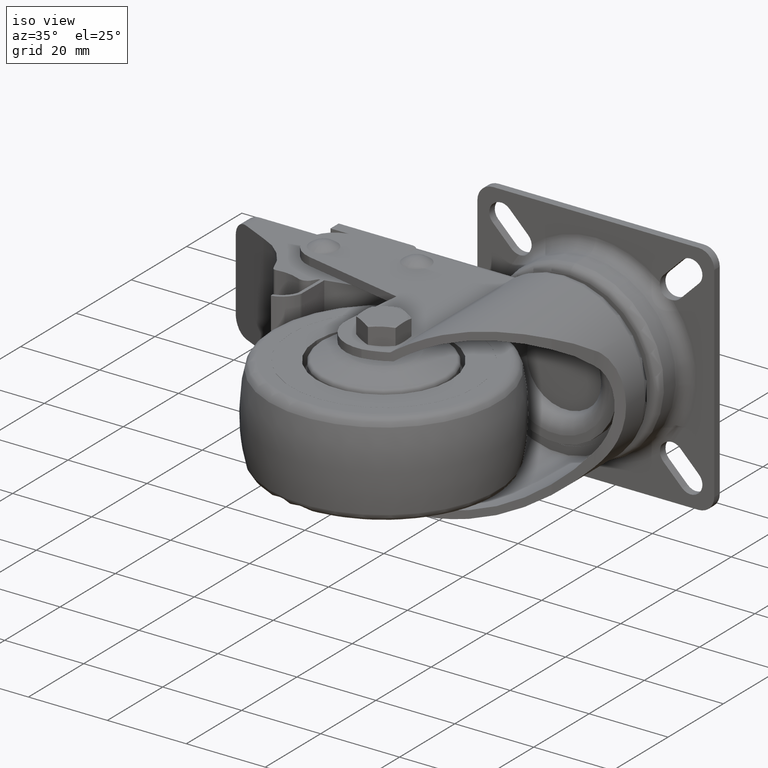
[diagram: clean part render]
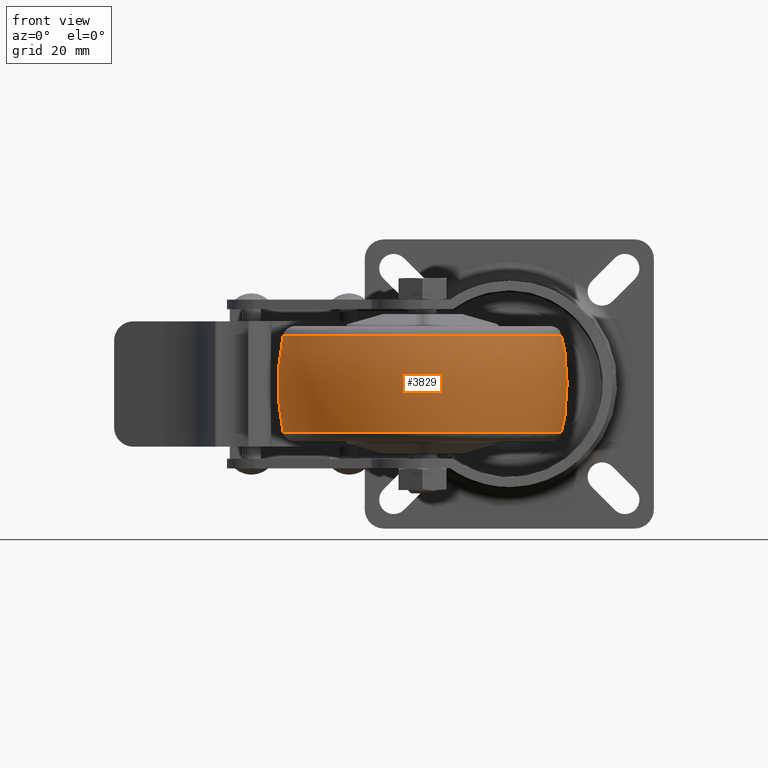
[diagram: tour spotlight — one face highlighted and labeled with its STEP entity id]
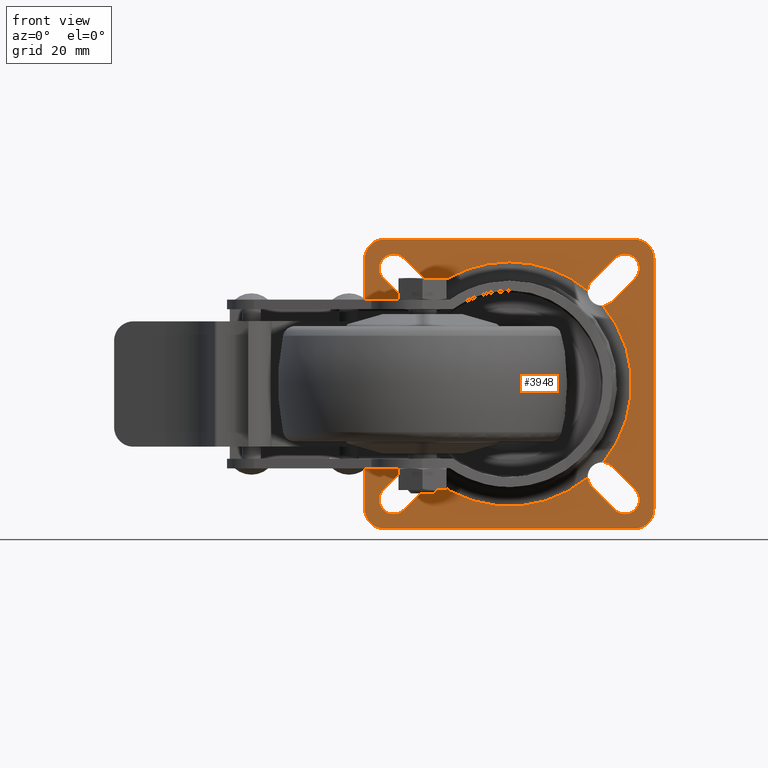
[diagram: tour spotlight — one face highlighted and labeled with its STEP entity id]
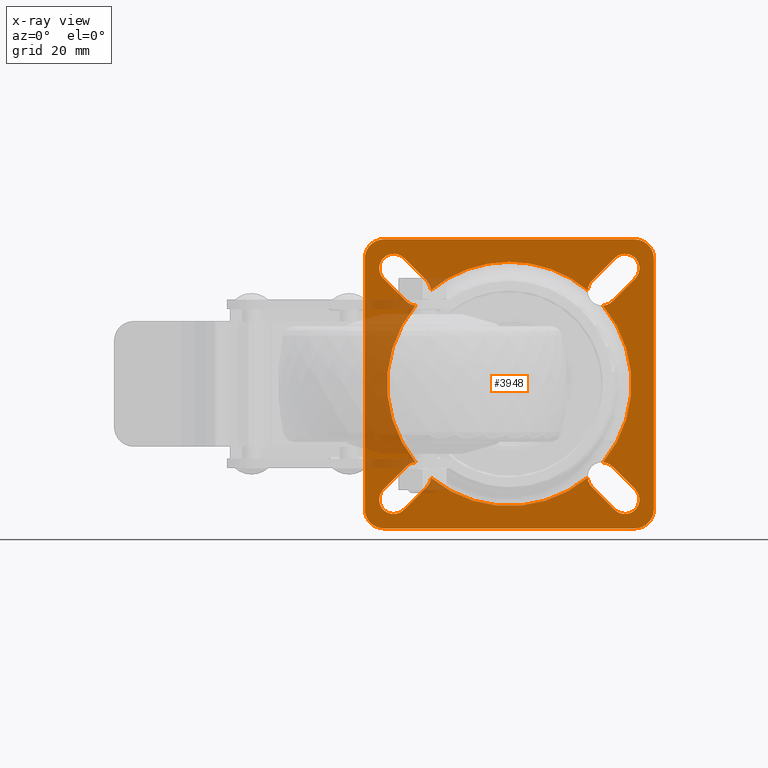
[diagram: x-ray of the same camera — body ghosted, this tour face saturated]
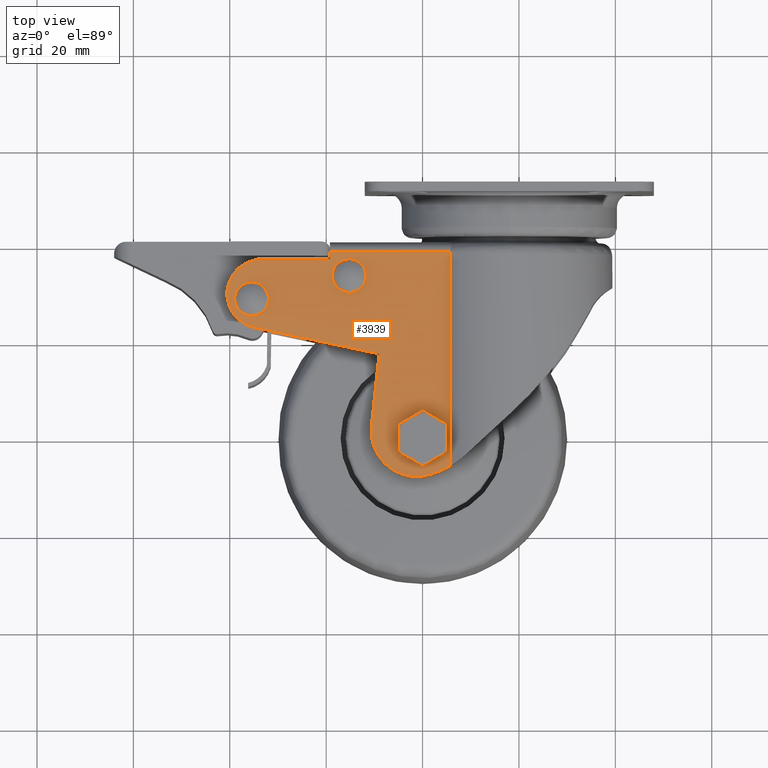
[diagram: tour spotlight — one face highlighted and labeled with its STEP entity id]
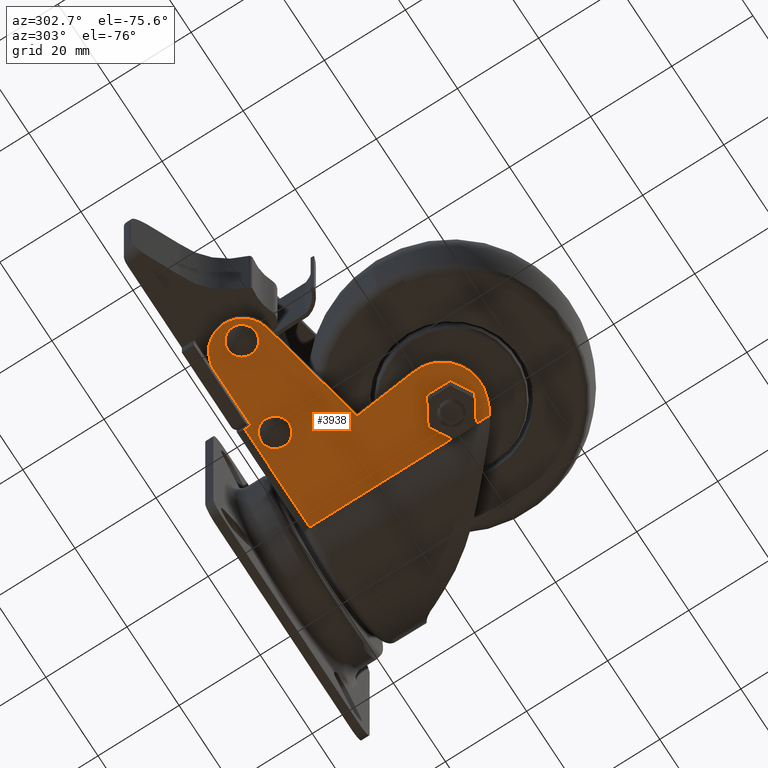
[diagram: tour spotlight — one face highlighted and labeled with its STEP entity id]
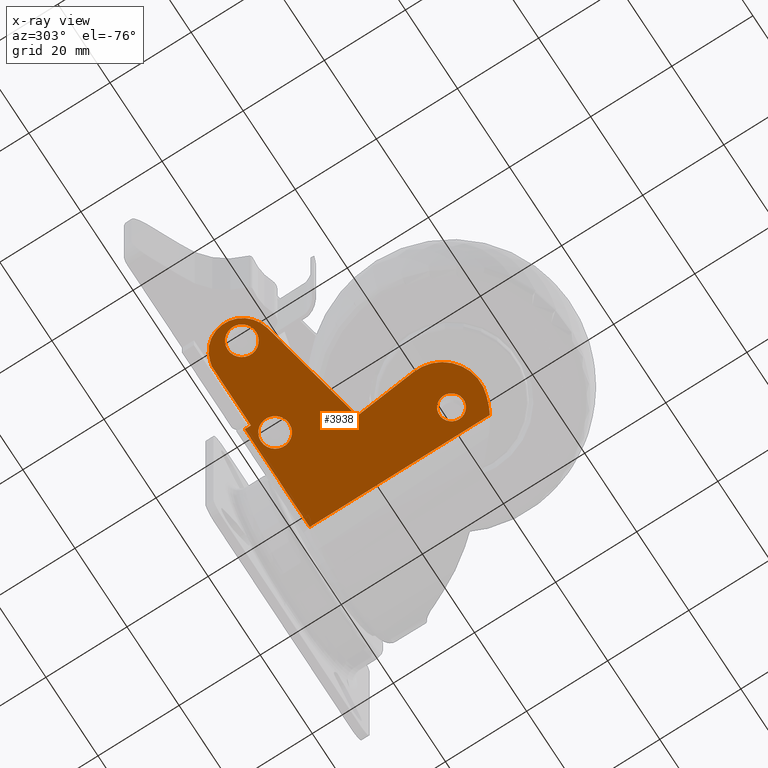
[diagram: x-ray of the same camera — body ghosted, this tour face saturated]
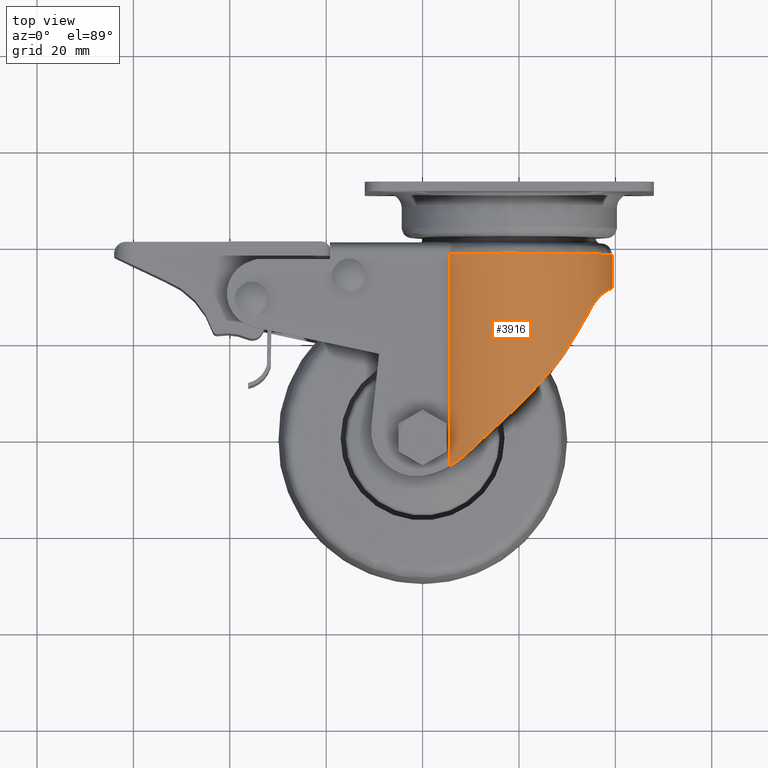
[diagram: tour spotlight — one face highlighted and labeled with its STEP entity id]
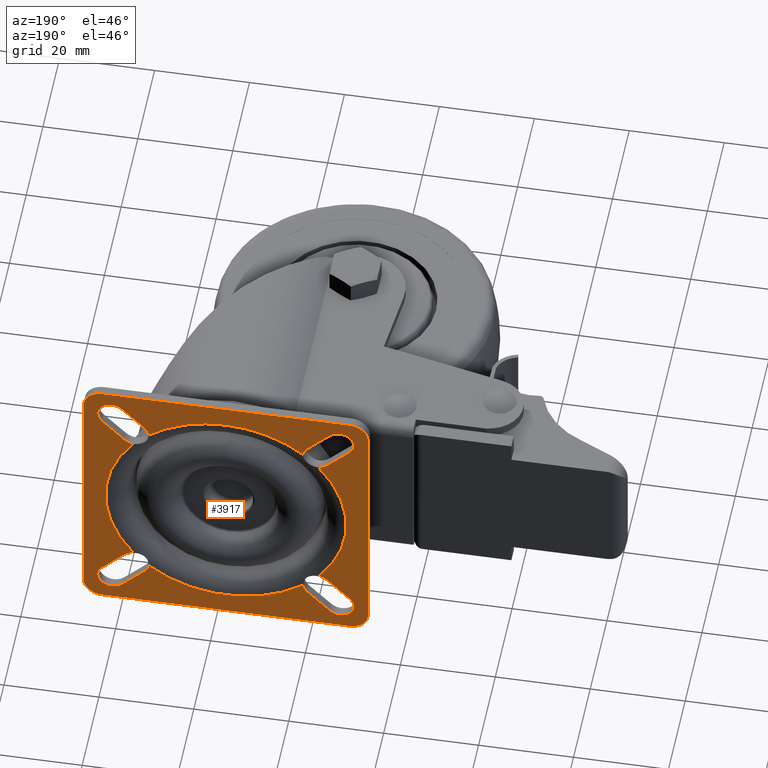
[diagram: tour spotlight — one face highlighted and labeled with its STEP entity id]
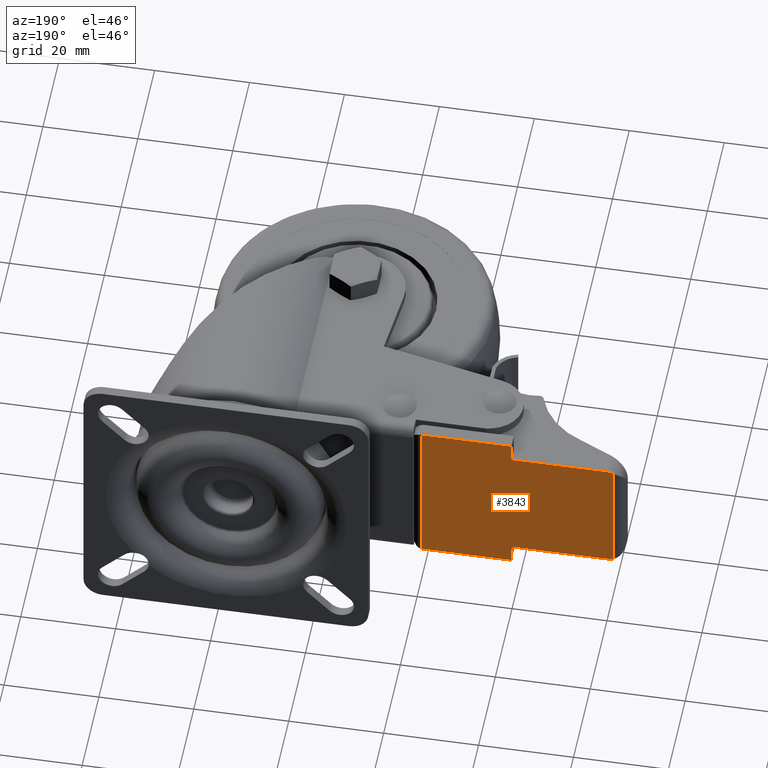
[diagram: tour spotlight — one face highlighted and labeled with its STEP entity id]
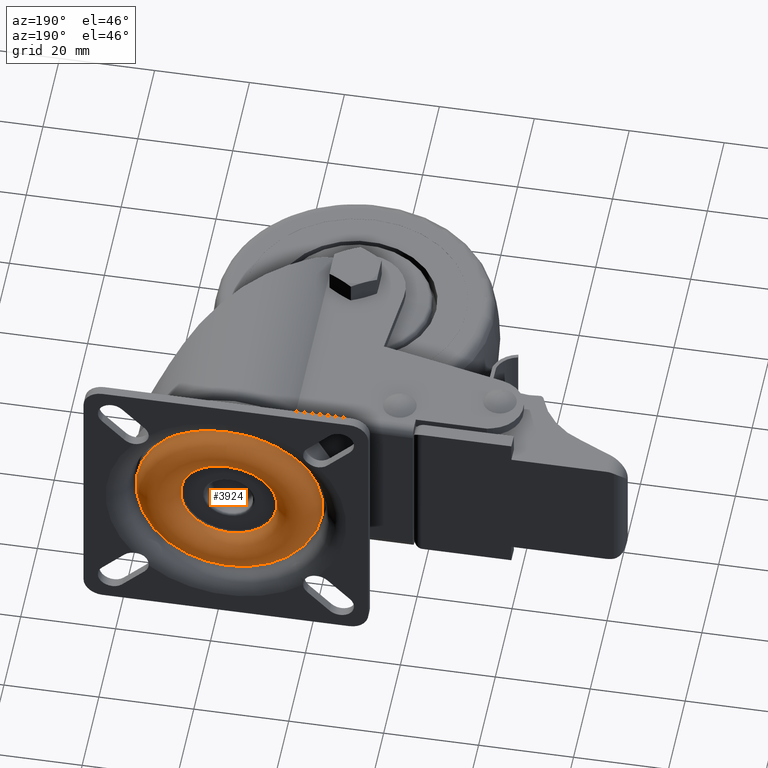
[diagram: tour spotlight — one face highlighted and labeled with its STEP entity id]
A machine part: a face-by-face anatomy tour. The part has 247 B-rep faces; the first image is the clean iso view, then the 8 largest visible faces are spotlighted one at a time (largest first), each with its STEP entity span.

Face 1 — front view, entity #3829. In plain terms, the highlighted face is a freeform B-spline surface patch.
Definition (entity closure, byte-faithful):
#94=(
BOUNDED_SURFACE()
B_SPLINE_SURFACE(2,2,((#6257,#6258,#6259,#6260,#6261,#6262,#6263,#6264,
#6265),(#6266,#6267,#6268,#6269,#6270,#6271,#6272,#6273,#6274),(#6275,#6276,
#6277,#6278,#6279,#6280,#6281,#6282,#6283)),.UNSPECIFIED.,.F.,.T.,.F.)
B_SPLINE_SURFACE_WITH_KNOTS((3,3),(3,2,2,2,3),(-0.209753877460467,0.209753877460468),
(-3.14159265358979,-1.5707963267949,0.,1.5707963267949,3.14159265358979),
 .UNSPECIFIED.)
GEOMETRIC_REPRESENTATION_ITEM()
RATIONAL_B_SPLINE_SURFACE(((1.,0.707106781186548,1.,0.707106781186548,1.,
0.707106781186548,1.,0.707106781186548,1.),(0.97808219178082,0.691608550366019,
0.97808219178082,0.691608550366019,0.97808219178082,0.691608550366019,0.97808219178082,
0.691608550366019,0.97808219178082),(1.,0.707106781186548,1.,0.707106781186548,
1.,0.707106781186548,1.,0.707106781186548,1.)))
REPRESENTATION_ITEM('')
SURFACE()
);
#909=FACE_OUTER_BOUND('',#1159,.T.);
#1159=EDGE_LOOP('',(#2809,#2810,#2811,#2812));
#1424=CIRCLE('',#4350,28.9452054794521);
#1425=CIRCLE('',#4351,48.1250000000001);
#1426=CIRCLE('',#4352,28.9452054794521);
#1722=VERTEX_POINT('',#6254);
#1723=VERTEX_POINT('',#6284);
#2130=EDGE_CURVE('',#1722,#1722,#1424,.T.);
#2131=EDGE_CURVE('',#1722,#1723,#1425,.T.);
#2132=EDGE_CURVE('',#1723,#1723,#1426,.T.);
#2809=ORIENTED_EDGE('',*,*,#2130,.F.);
#2810=ORIENTED_EDGE('',*,*,#2131,.T.);
#2811=ORIENTED_EDGE('',*,*,#2132,.T.);
#2812=ORIENTED_EDGE('',*,*,#2131,.F.);
#3829=ADVANCED_FACE('',(#909),#94,.F.);
#4350=AXIS2_PLACEMENT_3D('',#6256,#5003,#5004);
#4351=AXIS2_PLACEMENT_3D('',#6285,#5005,#5006);
#4352=AXIS2_PLACEMENT_3D('',#6286,#5007,#5008);
#5003=DIRECTION('center_axis',(1.,0.,0.));
#5004=DIRECTION('ref_axis',(0.,0.,-1.));
#5005=DIRECTION('center_axis',(0.,-1.,-1.22464679914735E-16));
#5006=DIRECTION('ref_axis',(0.,-1.22464679914735E-16,1.));
#5007=DIRECTION('center_axis',(1.,0.,0.));
#5008=DIRECTION('ref_axis',(0.,0.,-1.));
#6254=CARTESIAN_POINT('',(24.0205479452055,-3.54476532410734E-15,28.9452054794521));
#6256=CARTESIAN_POINT('Origin',(24.0205479452055,0.,0.));
#6257=CARTESIAN_POINT('Ctrl Pts',(3.97945205479452,0.,28.9452054794521));
#6258=CARTESIAN_POINT('Ctrl Pts',(3.97945205479452,-28.9452054794521,28.9452054794521));
#6259=CARTESIAN_POINT('Ctrl Pts',(3.97945205479452,-28.9452054794521,0.));
#6260=CARTESIAN_POINT('Ctrl Pts',(3.97945205479452,-28.9452054794521,-28.9452054794521));
#6261=CARTESIAN_POINT('Ctrl Pts',(3.97945205479452,0.,-28.9452054794521));
#6262=CARTESIAN_POINT('Ctrl Pts',(3.97945205479452,28.9452054794521,-28.9452054794521));
#6263=CARTESIAN_POINT('Ctrl Pts',(3.97945205479452,28.9452054794521,0.));
#6264=CARTESIAN_POINT('Ctrl Pts',(3.97945205479452,28.9452054794521,28.9452054794521));
#6265=CARTESIAN_POINT('Ctrl Pts',(3.97945205479452,0.,28.9452054794521));
#6266=CARTESIAN_POINT('Ctrl Pts',(14.,0.,31.078431372549));
#6267=CARTESIAN_POINT('Ctrl Pts',(14.,-31.078431372549,31.078431372549));
#6268=CARTESIAN_POINT('Ctrl Pts',(14.,-31.078431372549,0.));
#6269=CARTESIAN_POINT('Ctrl Pts',(14.,-31.078431372549,-31.078431372549));
#6270=CARTESIAN_POINT('Ctrl Pts',(14.,0.,-31.078431372549));
#6271=CARTESIAN_POINT('Ctrl Pts',(14.,31.078431372549,-31.078431372549));
#6272=CARTESIAN_POINT('Ctrl Pts',(14.,31.078431372549,0.));
#6273=CARTESIAN_POINT('Ctrl Pts',(14.,31.078431372549,31.078431372549));
#6274=CARTESIAN_POINT('Ctrl Pts',(14.,0.,31.078431372549));
#6275=CARTESIAN_POINT('Ctrl Pts',(24.0205479452055,0.,28.9452054794521));
#6276=CARTESIAN_POINT('Ctrl Pts',(24.0205479452055,-28.9452054794521,28.9452054794521));
#6277=CARTESIAN_POINT('Ctrl Pts',(24.0205479452055,-28.9452054794521,0.));
#6278=CARTESIAN_POINT('Ctrl Pts',(24.0205479452055,-28.9452054794521,-28.9452054794521));
#6279=CARTESIAN_POINT('Ctrl Pts',(24.0205479452055,0.,-28.9452054794521));
#6280=CARTESIAN_POINT('Ctrl Pts',(24.0205479452055,28.9452054794521,-28.9452054794521));
#6281=CARTESIAN_POINT('Ctrl Pts',(24.0205479452055,28.9452054794521,0.));
#6282=CARTESIAN_POINT('Ctrl Pts',(24.0205479452055,28.9452054794521,28.9452054794521));
#6283=CARTESIAN_POINT('Ctrl Pts',(24.0205479452055,0.,28.9452054794521));
#6284=CARTESIAN_POINT('',(3.97945205479451,-3.54476532410734E-15,28.9452054794521));
#6285=CARTESIAN_POINT('Origin',(14.,2.21967232345459E-15,-18.1250000000001));
#6286=CARTESIAN_POINT('Origin',(3.97945205479451,0.,0.));

Face 2 — front view, entity #3948. An x-ray twin of the same camera follows (body ghosted, this face saturated) — the face is partly hidden behind the body. In plain terms, the highlighted planar face has unit normal (0, 1, 0).
Definition (entity closure, byte-faithful):
#335=LINE('',#7314,#566);
#338=LINE('',#7322,#569);
#341=LINE('',#7330,#572);
#344=LINE('',#7337,#575);
#358=LINE('',#7525,#589);
#359=LINE('',#7529,#590);
#360=LINE('',#7534,#591);
#361=LINE('',#7538,#592);
#362=LINE('',#7543,#593);
#363=LINE('',#7547,#594);
#364=LINE('',#7552,#595);
#365=LINE('',#7556,#596);
#566=VECTOR('',#5614,1000.);
#569=VECTOR('',#5623,1000.);
#572=VECTOR('',#5632,1000.);
#575=VECTOR('',#5641,1000.);
#589=VECTOR('',#5731,1000.);
#590=VECTOR('',#5734,1000.);
#591=VECTOR('',#5739,1000.);
#592=VECTOR('',#5742,1000.);
#593=VECTOR('',#5747,1000.);
#594=VECTOR('',#5750,1000.);
#595=VECTOR('',#5755,1000.);
#596=VECTOR('',#5758,1000.);
#751=FACE_BOUND('',#1302,.T.);
#825=PLANE('',#4633);
#1028=FACE_OUTER_BOUND('',#1301,.T.);
#1301=EDGE_LOOP('',(#3450,#3451,#3452,#3453,#3454,#3455,#3456,#3457));
#1302=EDGE_LOOP('',(#3458,#3459,#3460,#3461,#3462,#3463,#3464,#3465,#3466,
#3467,#3468,#3469,#3470,#3471,#3472,#3473,#3474,#3475,#3476,#3477,#3478,
#3479,#3480,#3481,#3482));
#1549=CIRCLE('',#4586,3.99999999999999);
#1550=CIRCLE('',#4589,4.);
#1551=CIRCLE('',#4592,3.99999999999999);
#1552=CIRCLE('',#4595,3.99999999999999);
#1574=CIRCLE('',#4628,25.3600000000001);
#1575=CIRCLE('',#4629,25.3600000000001);
#1576=CIRCLE('',#4630,25.3600000000001);
#1577=CIRCLE('',#4631,25.3600000000001);
#1578=CIRCLE('',#4632,25.3600000000001);
#1579=CIRCLE('',#4634,3.);
#1580=CIRCLE('',#4635,3.);
#1581=CIRCLE('',#4636,3.);
#1582=CIRCLE('',#4637,3.);
#1583=CIRCLE('',#4638,3.);
#1584=CIRCLE('',#4639,3.);
#1585=CIRCLE('',#4640,3.);
#1586=CIRCLE('',#4641,3.);
#1587=CIRCLE('',#4642,3.);
#1588=CIRCLE('',#4643,3.);
#1589=CIRCLE('',#4644,3.);
#1590=CIRCLE('',#4645,3.);
#1947=VERTEX_POINT('',#7307);
#1948=VERTEX_POINT('',#7308);
#1949=VERTEX_POINT('',#7313);
#1950=VERTEX_POINT('',#7317);
#1951=VERTEX_POINT('',#7321);
#1952=VERTEX_POINT('',#7325);
#1953=VERTEX_POINT('',#7329);
#1954=VERTEX_POINT('',#7333);
#1980=VERTEX_POINT('',#7418);
#1981=VERTEX_POINT('',#7420);
#1982=VERTEX_POINT('',#7422);
#1983=VERTEX_POINT('',#7445);
#1984=VERTEX_POINT('',#7447);
#1985=VERTEX_POINT('',#7470);
#1986=VERTEX_POINT('',#7472);
#1987=VERTEX_POINT('',#7495);
#1988=VERTEX_POINT('',#7497);
#1989=VERTEX_POINT('',#7522);
#1990=VERTEX_POINT('',#7524);
#1991=VERTEX_POINT('',#7526);
#1992=VERTEX_POINT('',#7528);
#1993=VERTEX_POINT('',#7531);
#1994=VERTEX_POINT('',#7533);
#1995=VERTEX_POINT('',#7535);
#1996=VERTEX_POINT('',#7537);
#1997=VERTEX_POINT('',#7540);
#1998=VERTEX_POINT('',#7542);
#1999=VERTEX_POINT('',#7544);
#2000=VERTEX_POINT('',#7546);
#2001=VERTEX_POINT('',#7549);
#2002=VERTEX_POINT('',#7551);
#2003=VERTEX_POINT('',#7553);
#2004=VERTEX_POINT('',#7555);
#2447=EDGE_CURVE('',#1947,#1948,#1549,.T.);
#2450=EDGE_CURVE('',#1949,#1947,#335,.T.);
#2452=EDGE_CURVE('',#1950,#1949,#1550,.T.);
#2454=EDGE_CURVE('',#1951,#1950,#338,.T.);
#2456=EDGE_CURVE('',#1952,#1951,#1551,.T.);
#2458=EDGE_CURVE('',#1953,#1952,#341,.T.);
#2460=EDGE_CURVE('',#1954,#1953,#1552,.T.);
#2462=EDGE_CURVE('',#1948,#1954,#344,.T.);
#2499=EDGE_CURVE('',#1980,#1981,#1574,.T.);
#2501=EDGE_CURVE('',#1982,#1983,#1575,.T.);
#2503=EDGE_CURVE('',#1984,#1985,#1576,.T.);
#2505=EDGE_CURVE('',#1986,#1987,#1577,.T.);
#2507=EDGE_CURVE('',#1988,#1980,#1578,.T.);
#2508=EDGE_CURVE('',#1986,#1989,#1579,.T.);
#2509=EDGE_CURVE('',#1989,#1990,#358,.T.);
#2510=EDGE_CURVE('',#1990,#1991,#1580,.T.);
#2511=EDGE_CURVE('',#1991,#1992,#359,.T.);
#2512=EDGE_CURVE('',#1992,#1985,#1581,.T.);
#2513=EDGE_CURVE('',#1984,#1993,#1582,.T.);
#2514=EDGE_CURVE('',#1993,#1994,#360,.T.);
#2515=EDGE_CURVE('',#1994,#1995,#1583,.T.);
#2516=EDGE_CURVE('',#1995,#1996,#361,.T.);
#2517=EDGE_CURVE('',#1996,#1983,#1584,.T.);
#2518=EDGE_CURVE('',#1982,#1997,#1585,.T.);
#2519=EDGE_CURVE('',#1997,#1998,#362,.T.);
#2520=EDGE_CURVE('',#1998,#1999,#1586,.T.);
#2521=EDGE_CURVE('',#1999,#2000,#363,.T.);
#2522=EDGE_CURVE('',#2000,#1981,#1587,.T.);
#2523=EDGE_CURVE('',#1988,#2001,#1588,.T.);
#2524=EDGE_CURVE('',#2001,#2002,#364,.T.);
#2525=EDGE_CURVE('',#2002,#2003,#1589,.T.);
#2526=EDGE_CURVE('',#2003,#2004,#365,.T.);
#2527=EDGE_CURVE('',#2004,#1987,#1590,.T.);
#3450=ORIENTED_EDGE('',*,*,#2452,.F.);
#3451=ORIENTED_EDGE('',*,*,#2454,.F.);
#3452=ORIENTED_EDGE('',*,*,#2456,.F.);
#3453=ORIENTED_EDGE('',*,*,#2458,.F.);
#3454=ORIENTED_EDGE('',*,*,#2460,.F.);
#3455=ORIENTED_EDGE('',*,*,#2462,.F.);
#3456=ORIENTED_EDGE('',*,*,#2447,.F.);
#3457=ORIENTED_EDGE('',*,*,#2450,.F.);
#3458=ORIENTED_EDGE('',*,*,#2505,.F.);
#3459=ORIENTED_EDGE('',*,*,#2508,.T.);
#3460=ORIENTED_EDGE('',*,*,#2509,.T.);
#3461=ORIENTED_EDGE('',*,*,#2510,.T.);
#3462=ORIENTED_EDGE('',*,*,#2511,.T.);
#3463=ORIENTED_EDGE('',*,*,#2512,.T.);
#3464=ORIENTED_EDGE('',*,*,#2503,.F.);
#3465=ORIENTED_EDGE('',*,*,#2513,.T.);
#3466=ORIENTED_EDGE('',*,*,#2514,.T.);
#3467=ORIENTED_EDGE('',*,*,#2515,.T.);
#3468=ORIENTED_EDGE('',*,*,#2516,.T.);
#3469=ORIENTED_EDGE('',*,*,#2517,.T.);
#3470=ORIENTED_EDGE('',*,*,#2501,.F.);
#3471=ORIENTED_EDGE('',*,*,#2518,.T.);
#3472=ORIENTED_EDGE('',*,*,#2519,.T.);
#3473=ORIENTED_EDGE('',*,*,#2520,.T.);
#3474=ORIENTED_EDGE('',*,*,#2521,.T.);
#3475=ORIENTED_EDGE('',*,*,#2522,.T.);
#3476=ORIENTED_EDGE('',*,*,#2499,.F.);
#3477=ORIENTED_EDGE('',*,*,#2507,.F.);
#3478=ORIENTED_EDGE('',*,*,#2523,.T.);
#3479=ORIENTED_EDGE('',*,*,#2524,.T.);
#3480=ORIENTED_EDGE('',*,*,#2525,.T.);
#3481=ORIENTED_EDGE('',*,*,#2526,.T.);
#3482=ORIENTED_EDGE('',*,*,#2527,.T.);
#3948=ADVANCED_FACE('',(#1028,#751),#825,.F.);
#4586=AXIS2_PLACEMENT_3D('',#7309,#5608,#5609);
#4589=AXIS2_PLACEMENT_3D('',#7318,#5618,#5619);
#4592=AXIS2_PLACEMENT_3D('',#7326,#5627,#5628);
#4595=AXIS2_PLACEMENT_3D('',#7334,#5636,#5637);
#4628=AXIS2_PLACEMENT_3D('',#7421,#5717,#5718);
#4629=AXIS2_PLACEMENT_3D('',#7446,#5719,#5720);
#4630=AXIS2_PLACEMENT_3D('',#7471,#5721,#5722);
#4631=AXIS2_PLACEMENT_3D('',#7496,#5723,#5724);
#4632=AXIS2_PLACEMENT_3D('',#7520,#5725,#5726);
#4633=AXIS2_PLACEMENT_3D('',#7521,#5727,#5728);
#4634=AXIS2_PLACEMENT_3D('',#7523,#5729,#5730);
#4635=AXIS2_PLACEMENT_3D('',#7527,#5732,#5733);
#4636=AXIS2_PLACEMENT_3D('',#7530,#5735,#5736);
#4637=AXIS2_PLACEMENT_3D('',#7532,#5737,#5738);
#4638=AXIS2_PLACEMENT_3D('',#7536,#5740,#5741);
#4639=AXIS2_PLACEMENT_3D('',#7539,#5743,#5744);
#4640=AXIS2_PLACEMENT_3D('',#7541,#5745,#5746);
#4641=AXIS2_PLACEMENT_3D('',#7545,#5748,#5749);
#4642=AXIS2_PLACEMENT_3D('',#7548,#5751,#5752);
#4643=AXIS2_PLACEMENT_3D('',#7550,#5753,#5754);
#4644=AXIS2_PLACEMENT_3D('',#7554,#5756,#5757);
#4645=AXIS2_PLACEMENT_3D('',#7557,#5759,#5760);
#5608=DIRECTION('center_axis',(0.,1.,0.));
#5609=DIRECTION('ref_axis',(0.,0.,1.));
#5614=DIRECTION('',(-1.,0.,0.));
#5618=DIRECTION('center_axis',(0.,1.,0.));
#5619=DIRECTION('ref_axis',(0.,0.,1.));
#5623=DIRECTION('',(0.,0.,-1.));
#5627=DIRECTION('center_axis',(0.,1.,0.));
#5628=DIRECTION('ref_axis',(0.,0.,1.));
#5632=DIRECTION('',(1.,0.,0.));
#5636=DIRECTION('center_axis',(0.,1.,0.));
#5637=DIRECTION('ref_axis',(0.,0.,1.));
#5641=DIRECTION('',(0.,0.,1.));
#5717=DIRECTION('center_axis',(0.,-1.,0.));
#5718=DIRECTION('ref_axis',(0.,0.,-1.));
#5719=DIRECTION('center_axis',(0.,-1.,0.));
#5720=DIRECTION('ref_axis',(0.,0.,-1.));
#5721=DIRECTION('center_axis',(0.,-1.,0.));
#5722=DIRECTION('ref_axis',(0.,0.,-1.));
#5723=DIRECTION('center_axis',(0.,-1.,0.));
#5724=DIRECTION('ref_axis',(0.,0.,-1.));
#5725=DIRECTION('center_axis',(0.,-1.,0.));
#5726=DIRECTION('ref_axis',(0.,0.,-1.));
#5727=DIRECTION('center_axis',(0.,1.,0.));
#5728=DIRECTION('ref_axis',(0.,0.,1.));
#5729=DIRECTION('center_axis',(0.,1.,0.));
#5730=DIRECTION('ref_axis',(0.,0.,1.));
#5731=DIRECTION('',(0.707106781186547,0.,-0.707106781186548));
#5732=DIRECTION('center_axis',(0.,1.,0.));
#5733=DIRECTION('ref_axis',(0.,0.,1.));
#5734=DIRECTION('',(-0.707106781186547,0.,0.707106781186548));
#5735=DIRECTION('center_axis',(0.,1.,0.));
#5736=DIRECTION('ref_axis',(0.,0.,1.));
#5737=DIRECTION('center_axis',(0.,1.,0.));
#5738=DIRECTION('ref_axis',(0.,0.,1.));
#5739=DIRECTION('',(-0.707106781186548,0.,-0.707106781186547));
#5740=DIRECTION('center_axis',(0.,1.,0.));
#5741=DIRECTION('ref_axis',(0.,0.,1.));
#5742=DIRECTION('',(0.707106781186548,0.,0.707106781186547));
#5743=DIRECTION('center_axis',(0.,1.,0.));
#5744=DIRECTION('ref_axis',(0.,0.,1.));
#5745=DIRECTION('center_axis',(0.,1.,0.));
#5746=DIRECTION('ref_axis',(0.,0.,1.));
#5747=DIRECTION('',(-0.707106781186547,0.,0.707106781186548));
#5748=DIRECTION('center_axis',(0.,1.,0.));
#5749=DIRECTION('ref_axis',(0.,0.,1.));
#5750=DIRECTION('',(0.707106781186547,0.,-0.707106781186548));
#5751=DIRECTION('center_axis',(0.,1.,0.));
#5752=DIRECTION('ref_axis',(0.,0.,1.));
#5753=DIRECTION('center_axis',(0.,1.,0.));
#5754=DIRECTION('ref_axis',(0.,0.,1.));
#5755=DIRECTION('',(0.707106781186548,0.,0.707106781186547));
#5756=DIRECTION('center_axis',(0.,1.,0.));
#5757=DIRECTION('ref_axis',(0.,0.,1.));
#5758=DIRECTION('',(-0.707106781186548,0.,-0.707106781186547));
#5759=DIRECTION('center_axis',(0.,1.,0.));
#5760=DIRECTION('ref_axis',(0.,0.,1.));
#7307=CARTESIAN_POINT('',(-7.99999999999999,51.,-30.));
#7308=CARTESIAN_POINT('',(-12.,51.,-26.));
#7309=CARTESIAN_POINT('Origin',(-8.00000000000001,51.,-26.));
#7313=CARTESIAN_POINT('',(44.,51.,-30.));
#7314=CARTESIAN_POINT('',(62.,51.,-30.));
#7317=CARTESIAN_POINT('',(48.,51.,-26.));
#7318=CARTESIAN_POINT('Origin',(44.,51.,-26.));
#7321=CARTESIAN_POINT('',(48.,51.,26.));
#7322=CARTESIAN_POINT('',(48.,51.,0.));
#7325=CARTESIAN_POINT('',(44.,51.,30.));
#7326=CARTESIAN_POINT('Origin',(44.,51.,26.));
#7329=CARTESIAN_POINT('',(-8.,51.,30.));
#7330=CARTESIAN_POINT('',(62.,51.,30.));
#7333=CARTESIAN_POINT('',(-12.,51.,26.));
#7334=CARTESIAN_POINT('Origin',(-8.00000000000001,51.,26.));
#7337=CARTESIAN_POINT('',(-12.,51.,0.));
#7418=CARTESIAN_POINT('',(18.,51.,25.3600000000001));
#7420=CARTESIAN_POINT('',(1.74240715973739,51.,19.4633058610362));
#7421=CARTESIAN_POINT('Origin',(18.,51.,0.));
#7422=CARTESIAN_POINT('',(-1.46330586103622,51.,16.2575928402626));
#7445=CARTESIAN_POINT('',(-1.46330586103622,51.,-16.2575928402626));
#7446=CARTESIAN_POINT('Origin',(18.,51.,0.));
#7447=CARTESIAN_POINT('',(1.7424071597374,51.,-19.4633058610362));
#7470=CARTESIAN_POINT('',(34.2575928402626,51.,-19.4633058610362));
#7471=CARTESIAN_POINT('Origin',(18.,51.,0.));
#7472=CARTESIAN_POINT('',(37.4633058610362,51.,-16.2575928402626));
#7495=CARTESIAN_POINT('',(37.4633058610362,51.,16.2575928402626));
#7496=CARTESIAN_POINT('Origin',(18.,51.,0.));
#7497=CARTESIAN_POINT('',(34.2575928402626,51.,19.4633058610362));
#7520=CARTESIAN_POINT('Origin',(18.,51.,0.));
#7521=CARTESIAN_POINT('Origin',(62.,51.,0.));
#7522=CARTESIAN_POINT('',(39.3713203435596,51.,-17.1286796564404));
#7523=CARTESIAN_POINT('Origin',(37.25,51.,-19.25));
#7524=CARTESIAN_POINT('',(44.1213203435596,51.,-21.8786796564404));
#7525=CARTESIAN_POINT('',(42.1213203435596,51.,-19.8786796564403));
#7526=CARTESIAN_POINT('',(39.8786796564404,51.,-26.1213203435596));
#7527=CARTESIAN_POINT('Origin',(42.,51.,-24.));
#7528=CARTESIAN_POINT('',(35.1286796564404,51.,-21.3713203435596));
#7529=CARTESIAN_POINT('',(37.8786796564403,51.,-24.1213203435596));
#7530=CARTESIAN_POINT('Origin',(37.25,51.,-19.25));
#7531=CARTESIAN_POINT('',(0.871320343559651,51.,-21.3713203435596));
#7532=CARTESIAN_POINT('Origin',(-1.25,51.,-19.25));
#7533=CARTESIAN_POINT('',(-3.87867965644036,51.,-26.1213203435596));
#7534=CARTESIAN_POINT('',(42.1213203435597,51.,19.8786796564403));
#7535=CARTESIAN_POINT('',(-8.12132034355964,51.,-21.8786796564404));
#7536=CARTESIAN_POINT('Origin',(-5.99999999999999,51.,-24.));
#7537=CARTESIAN_POINT('',(-3.37132034355964,51.,-17.1286796564404));
#7538=CARTESIAN_POINT('',(37.8786796564404,51.,24.1213203435596));
#7539=CARTESIAN_POINT('Origin',(-1.25,51.,-19.25));
#7540=CARTESIAN_POINT('',(-3.37132034355964,51.,17.1286796564404));
#7541=CARTESIAN_POINT('Origin',(-1.25,51.,19.25));
#7542=CARTESIAN_POINT('',(-8.12132034355964,51.,21.8786796564404));
#7543=CARTESIAN_POINT('',(37.8786796564403,51.,-24.1213203435596));
#7544=CARTESIAN_POINT('',(-3.87867965644035,51.,26.1213203435596));
#7545=CARTESIAN_POINT('Origin',(-5.99999999999999,51.,24.));
#7546=CARTESIAN_POINT('',(0.871320343559648,51.,21.3713203435596));
#7547=CARTESIAN_POINT('',(42.1213203435596,51.,-19.8786796564404));
#7548=CARTESIAN_POINT('Origin',(-1.25,51.,19.25));
#7549=CARTESIAN_POINT('',(35.1286796564403,51.,21.3713203435596));
#7550=CARTESIAN_POINT('Origin',(37.25,51.,19.25));
#7551=CARTESIAN_POINT('',(39.8786796564404,51.,26.1213203435596));
#7552=CARTESIAN_POINT('',(37.8786796564404,51.,24.1213203435597));
#7553=CARTESIAN_POINT('',(44.1213203435596,51.,21.8786796564404));
#7554=CARTESIAN_POINT('Origin',(42.,51.,24.));
#7555=CARTESIAN_POINT('',(39.3713203435596,51.,17.1286796564404));
#7556=CARTESIAN_POINT('',(42.1213203435597,51.,19.8786796564404));
#7557=CARTESIAN_POINT('Origin',(37.25,51.,19.25));

Face 3 — top view, entity #3939. In plain terms, the highlighted planar face has unit normal (0, 0, -1).
Definition (entity closure, byte-faithful):
#85=B_SPLINE_CURVE_WITH_KNOTS('',3,(#7367,#7368,#7369,#7370,#7371,#7372),
 .UNSPECIFIED.,.F.,.F.,(4,2,4),(3.7540565092663,3.76615375246054,3.78614130969656),
 .UNSPECIFIED.);
#310=LINE('',#6975,#541);
#316=LINE('',#7087,#547);
#350=LINE('',#7374,#581);
#351=LINE('',#7376,#582);
#352=LINE('',#7378,#583);
#353=LINE('',#7382,#584);
#354=LINE('',#7383,#585);
#541=VECTOR('',#5465,1000.);
#547=VECTOR('',#5487,1000.);
#581=VECTOR('',#5663,1000.);
#582=VECTOR('',#5664,1000.);
#583=VECTOR('',#5665,1000.);
#584=VECTOR('',#5668,1000.);
#585=VECTOR('',#5669,1000.);
#747=FACE_BOUND('',#1289,.T.);
#748=FACE_BOUND('',#1290,.T.);
#749=FACE_BOUND('',#1291,.T.);
#823=PLANE('',#4603);
#1019=FACE_OUTER_BOUND('',#1288,.T.);
#1288=EDGE_LOOP('',(#3392,#3393,#3394,#3395,#3396,#3397,#3398,#3399,#3400,
#3401,#3402));
#1289=EDGE_LOOP('',(#3403));
#1290=EDGE_LOOP('',(#3404));
#1291=EDGE_LOOP('',(#3405));
#1505=CIRCLE('',#4523,18.1);
#1558=CIRCLE('',#4604,9.42);
#1559=CIRCLE('',#4605,7.12);
#1560=CIRCLE('',#4606,3.5);
#1561=CIRCLE('',#4607,3.5);
#1562=CIRCLE('',#4608,4.);
#1885=VERTEX_POINT('',#6960);
#1886=VERTEX_POINT('',#6967);
#1887=VERTEX_POINT('',#6971);
#1889=VERTEX_POINT('',#6974);
#1901=VERTEX_POINT('',#7085);
#1964=VERTEX_POINT('',#7365);
#1965=VERTEX_POINT('',#7373);
#1966=VERTEX_POINT('',#7375);
#1967=VERTEX_POINT('',#7377);
#1968=VERTEX_POINT('',#7379);
#1969=VERTEX_POINT('',#7381);
#1970=VERTEX_POINT('',#7384);
#1971=VERTEX_POINT('',#7386);
#1972=VERTEX_POINT('',#7388);
#2367=EDGE_CURVE('',#1886,#1885,#1505,.F.);
#2370=EDGE_CURVE('',#1889,#1887,#310,.T.);
#2386=EDGE_CURVE('',#1901,#1885,#316,.T.);
#2474=EDGE_CURVE('',#1964,#1886,#1558,.F.);
#2475=EDGE_CURVE('',#1901,#1889,#85,.T.);
#2476=EDGE_CURVE('',#1965,#1887,#350,.T.);
#2477=EDGE_CURVE('',#1966,#1965,#351,.T.);
#2478=EDGE_CURVE('',#1967,#1966,#352,.T.);
#2479=EDGE_CURVE('',#1967,#1968,#1559,.F.);
#2480=EDGE_CURVE('',#1969,#1968,#353,.T.);
#2481=EDGE_CURVE('',#1964,#1969,#354,.T.);
#2482=EDGE_CURVE('',#1970,#1970,#1560,.F.);
#2483=EDGE_CURVE('',#1971,#1971,#1561,.F.);
#2484=EDGE_CURVE('',#1972,#1972,#1562,.F.);
#3392=ORIENTED_EDGE('',*,*,#2474,.T.);
#3393=ORIENTED_EDGE('',*,*,#2367,.T.);
#3394=ORIENTED_EDGE('',*,*,#2386,.F.);
#3395=ORIENTED_EDGE('',*,*,#2475,.T.);
#3396=ORIENTED_EDGE('',*,*,#2370,.T.);
#3397=ORIENTED_EDGE('',*,*,#2476,.F.);
#3398=ORIENTED_EDGE('',*,*,#2477,.F.);
#3399=ORIENTED_EDGE('',*,*,#2478,.F.);
#3400=ORIENTED_EDGE('',*,*,#2479,.T.);
#3401=ORIENTED_EDGE('',*,*,#2480,.F.);
#3402=ORIENTED_EDGE('',*,*,#2481,.F.);
#3403=ORIENTED_EDGE('',*,*,#2482,.F.);
#3404=ORIENTED_EDGE('',*,*,#2483,.F.);
#3405=ORIENTED_EDGE('',*,*,#2484,.F.);
#3939=ADVANCED_FACE('',(#1019,#747,#748,#749),#823,.F.);
#4523=AXIS2_PLACEMENT_3D('',#6968,#5458,#5459);
#4603=AXIS2_PLACEMENT_3D('',#7364,#5659,#5660);
#4604=AXIS2_PLACEMENT_3D('',#7366,#5661,#5662);
#4605=AXIS2_PLACEMENT_3D('',#7380,#5666,#5667);
#4606=AXIS2_PLACEMENT_3D('',#7385,#5670,#5671);
#4607=AXIS2_PLACEMENT_3D('',#7387,#5672,#5673);
#4608=AXIS2_PLACEMENT_3D('',#7389,#5674,#5675);
#5458=DIRECTION('center_axis',(0.,0.,-1.));
#5459=DIRECTION('ref_axis',(-1.,0.,0.));
#5465=DIRECTION('',(-1.,0.,0.));
#5487=DIRECTION('',(0.,-1.,0.));
#5659=DIRECTION('center_axis',(0.,0.,-1.));
#5660=DIRECTION('ref_axis',(-1.,0.,0.));
#5661=DIRECTION('center_axis',(0.,0.,-1.));
#5662=DIRECTION('ref_axis',(-1.,0.,0.));
#5663=DIRECTION('',(0.,1.,0.));
#5664=DIRECTION('',(1.,0.,0.));
#5665=DIRECTION('',(0.965968480132403,0.258659806291381,0.));
#5666=DIRECTION('center_axis',(0.,0.,-1.));
#5667=DIRECTION('ref_axis',(-1.,0.,0.));
#5668=DIRECTION('',(-0.978159809634596,0.207854244160687,0.));
#5669=DIRECTION('',(0.10560576134488,0.99440807678275,0.));
#5670=DIRECTION('center_axis',(0.,0.,-1.));
#5671=DIRECTION('ref_axis',(-1.,0.,0.));
#5672=DIRECTION('center_axis',(0.,0.,-1.));
#5673=DIRECTION('ref_axis',(-1.,0.,0.));
#5674=DIRECTION('center_axis',(0.,0.,-1.));
#5675=DIRECTION('ref_axis',(-1.,0.,0.));
#6960=CARTESIAN_POINT('',(5.6829386621646,-5.82542426965454,17.5));
#6967=CARTESIAN_POINT('',(-0.110055722799135,-7.91954694941594,17.5));
#6968=CARTESIAN_POINT('Origin',(-3.27712291705123,9.90121861739099,17.5));
#6971=CARTESIAN_POINT('',(-19.23,38.62,17.5));
#6974=CARTESIAN_POINT('',(5.69377027816835,38.62,17.5));
#6975=CARTESIAN_POINT('',(18.,38.62,17.5));
#7085=CARTESIAN_POINT('',(5.6829386621646,38.289153230027,17.5));
#7087=CARTESIAN_POINT('',(5.6829386621646,32.3379999999999,17.5));
#7364=CARTESIAN_POINT('Origin',(18.,38.62,17.5));
#7365=CARTESIAN_POINT('',(-10.6156150756388,2.52948467769254,17.5));
#7366=CARTESIAN_POINT('Origin',(-1.26,1.43,17.5));
#7367=CARTESIAN_POINT('Ctrl Pts',(5.6829386621646,38.289153230027,17.5));
#7368=CARTESIAN_POINT('Ctrl Pts',(5.67883246529881,38.3312268504517,17.5));
#7369=CARTESIAN_POINT('Ctrl Pts',(5.67689723193475,38.3727524710333,17.5));
#7370=CARTESIAN_POINT('Ctrl Pts',(5.67689723193475,38.4797018058009,17.5));
#7371=CARTESIAN_POINT('Ctrl Pts',(5.68227070387247,38.5496747408538,17.5));
#7372=CARTESIAN_POINT('Ctrl Pts',(5.69377027816835,38.62,17.5));
#7373=CARTESIAN_POINT('',(-19.23,37.12,17.5));
#7374=CARTESIAN_POINT('',(-19.23,38.62,17.5));
#7375=CARTESIAN_POINT('',(-34.1996460176991,37.12,17.5));
#7376=CARTESIAN_POINT('',(18.,37.12,17.5));
#7377=CARTESIAN_POINT('',(-35.32,36.82,17.5));
#7378=CARTESIAN_POINT('',(14.8823739736865,50.262815779684,17.5));
#7379=CARTESIAN_POINT('',(-34.96,22.97,17.5));
#7380=CARTESIAN_POINT('Origin',(-33.4954490761877,29.9377464500052,17.5));
#7381=CARTESIAN_POINT('',(-9.03,17.46,17.5));
#7382=CARTESIAN_POINT('',(12.5300740816109,12.8785881916824,17.5));
#7383=CARTESIAN_POINT('',(-6.50642375002113,41.2225729259303,17.5));
#7384=CARTESIAN_POINT('',(-15.25,30.2,17.5));
#7385=CARTESIAN_POINT('Origin',(-15.25,33.7,17.5));
#7386=CARTESIAN_POINT('',(-35.5,25.4,17.5));
#7387=CARTESIAN_POINT('Origin',(-35.5,28.9,17.5));
#7388=CARTESIAN_POINT('',(4.,-4.89858719658941E-16,17.5));
#7389=CARTESIAN_POINT('Origin',(0.,0.,17.5));

Face 4 — auxiliary view, entity #3938. An x-ray twin of the same camera follows (body ghosted, this face saturated) — the face is partly hidden behind the body. In plain terms, the highlighted planar face has unit normal (0, 0, 1).
Definition (entity closure, byte-faithful):
#84=B_SPLINE_CURVE_WITH_KNOTS('',3,(#7352,#7353,#7354,#7355,#7356,#7357),
 .UNSPECIFIED.,.F.,.F.,(4,2,4),(1.23539702691749,1.25538458415351,1.26748182734775),
 .UNSPECIFIED.);
#314=LINE('',#7038,#545);
#315=LINE('',#7082,#546);
#345=LINE('',#7342,#576);
#346=LINE('',#7344,#577);
#347=LINE('',#7348,#578);
#348=LINE('',#7350,#579);
#349=LINE('',#7351,#580);
#545=VECTOR('',#5477,1000.);
#546=VECTOR('',#5482,1000.);
#576=VECTOR('',#5646,1000.);
#577=VECTOR('',#5647,1000.);
#578=VECTOR('',#5650,1000.);
#579=VECTOR('',#5651,1000.);
#580=VECTOR('',#5652,1000.);
#744=FACE_BOUND('',#1285,.T.);
#745=FACE_BOUND('',#1286,.T.);
#746=FACE_BOUND('',#1287,.T.);
#822=PLANE('',#4597);
#1018=FACE_OUTER_BOUND('',#1284,.T.);
#1284=EDGE_LOOP('',(#3378,#3379,#3380,#3381,#3382,#3383,#3384,#3385,#3386,
#3387,#3388));
#1285=EDGE_LOOP('',(#3389));
#1286=EDGE_LOOP('',(#3390));
#1287=EDGE_LOOP('',(#3391));
#1504=CIRCLE('',#4521,18.1);
#1553=CIRCLE('',#4598,9.42);
#1554=CIRCLE('',#4599,7.12);
#1555=CIRCLE('',#4600,3.5);
#1556=CIRCLE('',#4601,3.5);
#1557=CIRCLE('',#4602,3.);
#1882=VERTEX_POINT('',#6947);
#1883=VERTEX_POINT('',#6949);
#1893=VERTEX_POINT('',#7009);
#1894=VERTEX_POINT('',#7011);
#1899=VERTEX_POINT('',#7081);
#1955=VERTEX_POINT('',#7339);
#1956=VERTEX_POINT('',#7341);
#1957=VERTEX_POINT('',#7343);
#1958=VERTEX_POINT('',#7345);
#1959=VERTEX_POINT('',#7347);
#1960=VERTEX_POINT('',#7349);
#1961=VERTEX_POINT('',#7358);
#1962=VERTEX_POINT('',#7360);
#1963=VERTEX_POINT('',#7362);
#2363=EDGE_CURVE('',#1883,#1882,#1504,.F.);
#2378=EDGE_CURVE('',#1894,#1893,#314,.T.);
#2383=EDGE_CURVE('',#1883,#1899,#315,.F.);
#2463=EDGE_CURVE('',#1882,#1955,#1553,.F.);
#2464=EDGE_CURVE('',#1956,#1955,#345,.T.);
#2465=EDGE_CURVE('',#1957,#1956,#346,.T.);
#2466=EDGE_CURVE('',#1957,#1958,#1554,.F.);
#2467=EDGE_CURVE('',#1959,#1958,#347,.T.);
#2468=EDGE_CURVE('',#1960,#1959,#348,.T.);
#2469=EDGE_CURVE('',#1893,#1960,#349,.T.);
#2470=EDGE_CURVE('',#1894,#1899,#84,.T.);
#2471=EDGE_CURVE('',#1961,#1961,#1555,.T.);
#2472=EDGE_CURVE('',#1962,#1962,#1556,.T.);
#2473=EDGE_CURVE('',#1963,#1963,#1557,.T.);
#3378=ORIENTED_EDGE('',*,*,#2383,.F.);
#3379=ORIENTED_EDGE('',*,*,#2363,.T.);
#3380=ORIENTED_EDGE('',*,*,#2463,.T.);
#3381=ORIENTED_EDGE('',*,*,#2464,.F.);
#3382=ORIENTED_EDGE('',*,*,#2465,.F.);
#3383=ORIENTED_EDGE('',*,*,#2466,.T.);
#3384=ORIENTED_EDGE('',*,*,#2467,.F.);
#3385=ORIENTED_EDGE('',*,*,#2468,.F.);
#3386=ORIENTED_EDGE('',*,*,#2469,.F.);
#3387=ORIENTED_EDGE('',*,*,#2378,.F.);
#3388=ORIENTED_EDGE('',*,*,#2470,.T.);
#3389=ORIENTED_EDGE('',*,*,#2471,.F.);
#3390=ORIENTED_EDGE('',*,*,#2472,.F.);
#3391=ORIENTED_EDGE('',*,*,#2473,.T.);
#3938=ADVANCED_FACE('',(#1018,#744,#745,#746),#822,.F.);
#4521=AXIS2_PLACEMENT_3D('',#6950,#5453,#5454);
#4597=AXIS2_PLACEMENT_3D('',#7338,#5642,#5643);
#4598=AXIS2_PLACEMENT_3D('',#7340,#5644,#5645);
#4599=AXIS2_PLACEMENT_3D('',#7346,#5648,#5649);
#4600=AXIS2_PLACEMENT_3D('',#7359,#5653,#5654);
#4601=AXIS2_PLACEMENT_3D('',#7361,#5655,#5656);
#4602=AXIS2_PLACEMENT_3D('',#7363,#5657,#5658);
#5453=DIRECTION('center_axis',(0.,0.,1.));
#5454=DIRECTION('ref_axis',(1.,0.,0.));
#5477=DIRECTION('',(-1.,0.,0.));
#5482=DIRECTION('',(0.,-1.,0.));
#5642=DIRECTION('center_axis',(0.,0.,1.));
#5643=DIRECTION('ref_axis',(1.,0.,0.));
#5644=DIRECTION('center_axis',(0.,0.,1.));
#5645=DIRECTION('ref_axis',(1.,0.,0.));
#5646=DIRECTION('',(-0.10560576134488,-0.99440807678275,0.));
#5647=DIRECTION('',(0.978159809634596,-0.207854244160687,0.));
#5648=DIRECTION('center_axis',(0.,0.,1.));
#5649=DIRECTION('ref_axis',(1.,0.,0.));
#5650=DIRECTION('',(-0.965968480132403,-0.258659806291381,0.));
#5651=DIRECTION('',(-1.,0.,0.));
#5652=DIRECTION('',(0.,-1.,0.));
#5653=DIRECTION('center_axis',(0.,0.,-1.));
#5654=DIRECTION('ref_axis',(-1.,0.,0.));
#5655=DIRECTION('center_axis',(0.,0.,-1.));
#5656=DIRECTION('ref_axis',(-1.,0.,0.));
#5657=DIRECTION('center_axis',(0.,0.,1.));
#5658=DIRECTION('ref_axis',(1.,0.,0.));
#6947=CARTESIAN_POINT('',(-0.110055722799135,-7.91954694941594,-17.5));
#6949=CARTESIAN_POINT('',(5.68293866216459,-5.82542426965455,-17.5));
#6950=CARTESIAN_POINT('Origin',(-3.27712291705123,9.90121861739099,-17.5));
#7009=CARTESIAN_POINT('',(-19.23,38.62,-17.5));
#7011=CARTESIAN_POINT('',(5.69377027816835,38.62,-17.5));
#7038=CARTESIAN_POINT('',(18.,38.62,-17.5));
#7081=CARTESIAN_POINT('',(5.6829386621646,38.289153230027,-17.5));
#7082=CARTESIAN_POINT('',(5.6829386621646,32.3379999999999,-17.5));
#7338=CARTESIAN_POINT('Origin',(18.,-8.,-17.5));
#7339=CARTESIAN_POINT('',(-10.6156150756388,2.52948467769254,-17.5));
#7340=CARTESIAN_POINT('Origin',(-1.26,1.43,-17.5));
#7341=CARTESIAN_POINT('',(-9.03,17.46,-17.5));
#7342=CARTESIAN_POINT('',(-11.402233401346,-4.87749394229088,-17.5));
#7343=CARTESIAN_POINT('',(-34.96,22.97,-17.5));
#7344=CARTESIAN_POINT('',(22.008603899107,10.8644462983386,-17.5));
#7345=CARTESIAN_POINT('',(-35.32,36.82,-17.5));
#7346=CARTESIAN_POINT('Origin',(-33.4954490761877,29.9377464500052,-17.5));
#7347=CARTESIAN_POINT('',(-34.1996460176991,37.12,-17.5));
#7348=CARTESIAN_POINT('',(3.23403037940174,47.1437095565698,-17.5));
#7349=CARTESIAN_POINT('',(-19.23,37.12,-17.5));
#7350=CARTESIAN_POINT('',(18.,37.12,-17.5));
#7351=CARTESIAN_POINT('',(-19.23,-8.,-17.5));
#7352=CARTESIAN_POINT('Ctrl Pts',(5.69377027816835,38.62,-17.5));
#7353=CARTESIAN_POINT('Ctrl Pts',(5.68227070387247,38.5496747408538,-17.5));
#7354=CARTESIAN_POINT('Ctrl Pts',(5.67689723193475,38.4797018058008,-17.5));
#7355=CARTESIAN_POINT('Ctrl Pts',(5.67689723193475,38.3727524710333,-17.5));
#7356=CARTESIAN_POINT('Ctrl Pts',(5.67883246529881,38.3312268504517,-17.5));
#7357=CARTESIAN_POINT('Ctrl Pts',(5.6829386621646,38.289153230027,-17.5));
#7358=CARTESIAN_POINT('',(-15.25,30.2,-17.5));
#7359=CARTESIAN_POINT('Origin',(-15.25,33.7,-17.5));
#7360=CARTESIAN_POINT('',(-35.5,25.4,-17.5));
#7361=CARTESIAN_POINT('Origin',(-35.5,28.9,-17.5));
#7362=CARTESIAN_POINT('',(-3.,-3.67394039744206E-16,-17.5));
#7363=CARTESIAN_POINT('Origin',(0.,0.,-17.5));

Face 5 — top view, entity #3916. In plain terms, the highlighted cylindrical surface (partial cylindrical patch) has radius 21.4 mm, axis along (0, -1, 0).
Definition (entity closure, byte-faithful):
#54=ELLIPSE('',#4519,29.0666211373322,21.4);
#55=ELLIPSE('',#4531,29.0666211373322,21.4);
#71=B_SPLINE_CURVE_WITH_KNOTS('',3,(#6952,#6953,#6954,#6955,#6956,#6957),
 .UNSPECIFIED.,.F.,.F.,(4,2,4),(-10.2368809542149,-9.93284005071149,-9.80873821706467),
 .UNSPECIFIED.);
#72=B_SPLINE_CURVE_WITH_KNOTS('',3,(#6961,#6962,#6963,#6964,#6965,#6966),
 .UNSPECIFIED.,.F.,.F.,(4,2,4),(-5.77975145858913,-5.65564962494231,-5.35160872143894),
 .UNSPECIFIED.);
#75=B_SPLINE_CURVE_WITH_KNOTS('',3,(#7042,#7043,#7044,#7045,#7046,#7047,
#7048,#7049,#7050,#7051,#7052,#7053,#7054,#7055,#7056,#7057,#7058,#7059,
#7060,#7061,#7062,#7063),.UNSPECIFIED.,.F.,.F.,(4,2,2,2,2,2,2,2,2,2,4),
(0.37670872901323,0.660213203729123,0.851237266974037,1.04226133021895,
1.45880572965068,1.87535012908242,2.29189452851415,2.70843892794588,2.8994629911908,
3.09048705443571,3.3739915291516),.UNSPECIFIED.);
#76=B_SPLINE_CURVE_WITH_KNOTS('',3,(#7065,#7066,#7067,#7068,#7069,#7070),
 .UNSPECIFIED.,.F.,.F.,(4,2,4),(9.19789855668107,10.0634861364802,10.2074188752963),
 .UNSPECIFIED.);
#77=B_SPLINE_CURVE_WITH_KNOTS('',3,(#7072,#7073,#7074,#7075,#7076,#7077,
#7078,#7079),.UNSPECIFIED.,.F.,.F.,(4,2,2,4),(11.1016009870336,11.4668460937981,
12.1474666321867,12.821363923229),.UNSPECIFIED.);
#78=B_SPLINE_CURVE_WITH_KNOTS('',3,(#7089,#7090,#7091,#7092,#7093,#7094,
#7095,#7096),.UNSPECIFIED.,.F.,.F.,(4,2,2,4),(3.57704131858966,4.25093860963201,
4.93155914802059,5.29680425478511),.UNSPECIFIED.);
#79=B_SPLINE_CURVE_WITH_KNOTS('',3,(#7097,#7098,#7099,#7100,#7101,#7102),
 .UNSPECIFIED.,.F.,.F.,(4,2,4),(4.75871844428111,4.90265118309723,5.76823876289638),
 .UNSPECIFIED.);
#315=LINE('',#7082,#546);
#316=LINE('',#7087,#547);
#546=VECTOR('',#5482,1000.);
#547=VECTOR('',#5487,1000.);
#679=CYLINDRICAL_SURFACE('',#4530,21.4);
#996=FACE_OUTER_BOUND('',#1260,.T.);
#1260=EDGE_LOOP('',(#3249,#3250,#3251,#3252,#3253,#3254,#3255,#3256,#3257,
#3258,#3259,#3260,#3261));
#1509=CIRCLE('',#4532,21.4);
#1510=CIRCLE('',#4533,21.4);
#1880=VERTEX_POINT('',#6941);
#1881=VERTEX_POINT('',#6943);
#1883=VERTEX_POINT('',#6949);
#1884=VERTEX_POINT('',#6951);
#1885=VERTEX_POINT('',#6960);
#1895=VERTEX_POINT('',#7040);
#1896=VERTEX_POINT('',#7041);
#1897=VERTEX_POINT('',#7064);
#1898=VERTEX_POINT('',#7071);
#1899=VERTEX_POINT('',#7081);
#1900=VERTEX_POINT('',#7083);
#1901=VERTEX_POINT('',#7085);
#1902=VERTEX_POINT('',#7088);
#2361=EDGE_CURVE('',#1881,#1880,#54,.T.);
#2364=EDGE_CURVE('',#1884,#1883,#71,.T.);
#2366=EDGE_CURVE('',#1885,#1880,#72,.T.);
#2379=EDGE_CURVE('',#1895,#1896,#75,.T.);
#2380=EDGE_CURVE('',#1895,#1897,#76,.T.);
#2381=EDGE_CURVE('',#1897,#1898,#77,.T.);
#2382=EDGE_CURVE('',#1884,#1898,#55,.T.);
#2383=EDGE_CURVE('',#1883,#1899,#315,.F.);
#2384=EDGE_CURVE('',#1899,#1900,#1509,.T.);
#2385=EDGE_CURVE('',#1900,#1901,#1510,.T.);
#2386=EDGE_CURVE('',#1901,#1885,#316,.T.);
#2387=EDGE_CURVE('',#1881,#1902,#78,.T.);
#2388=EDGE_CURVE('',#1902,#1896,#79,.T.);
#3249=ORIENTED_EDGE('',*,*,#2379,.F.);
#3250=ORIENTED_EDGE('',*,*,#2380,.T.);
#3251=ORIENTED_EDGE('',*,*,#2381,.T.);
#3252=ORIENTED_EDGE('',*,*,#2382,.F.);
#3253=ORIENTED_EDGE('',*,*,#2364,.T.);
#3254=ORIENTED_EDGE('',*,*,#2383,.T.);
#3255=ORIENTED_EDGE('',*,*,#2384,.T.);
#3256=ORIENTED_EDGE('',*,*,#2385,.T.);
#3257=ORIENTED_EDGE('',*,*,#2386,.T.);
#3258=ORIENTED_EDGE('',*,*,#2366,.T.);
#3259=ORIENTED_EDGE('',*,*,#2361,.F.);
#3260=ORIENTED_EDGE('',*,*,#2387,.T.);
#3261=ORIENTED_EDGE('',*,*,#2388,.T.);
#3916=ADVANCED_FACE('',(#996),#679,.T.);
#4519=AXIS2_PLACEMENT_3D('',#6945,#5448,#5449);
#4530=AXIS2_PLACEMENT_3D('',#7039,#5478,#5479);
#4531=AXIS2_PLACEMENT_3D('',#7080,#5480,#5481);
#4532=AXIS2_PLACEMENT_3D('',#7084,#5483,#5484);
#4533=AXIS2_PLACEMENT_3D('',#7086,#5485,#5486);
#5448=DIRECTION('center_axis',(0.676720862492661,-0.736239685338402,0.));
#5449=DIRECTION('ref_axis',(-0.736239685338402,-0.676720862492661,0.));
#5478=DIRECTION('center_axis',(0.,-1.,0.));
#5479=DIRECTION('ref_axis',(1.,0.,-6.12323399573677E-17));
#5480=DIRECTION('center_axis',(0.676720862492661,-0.736239685338402,0.));
#5481=DIRECTION('ref_axis',(-0.736239685338402,-0.676720862492661,0.));
#5482=DIRECTION('',(0.,-1.,0.));
#5483=DIRECTION('center_axis',(0.,-1.,0.));
#5484=DIRECTION('ref_axis',(0.,0.,-1.));
#5485=DIRECTION('center_axis',(0.,-1.,0.));
#5486=DIRECTION('ref_axis',(0.,0.,-1.));
#5487=DIRECTION('',(0.,-1.,0.));
#6941=CARTESIAN_POINT('',(9.01999999999983,-3.38000000000015,19.4247162141432));
#6943=CARTESIAN_POINT('',(18.0499999999996,4.91999999999963,21.3999415887053));
#6945=CARTESIAN_POINT('Origin',(18.,4.87404208194906,0.));
#6949=CARTESIAN_POINT('',(5.68293866216459,-5.82542426965455,-17.5));
#6951=CARTESIAN_POINT('',(9.01999999999983,-3.38000000000015,-19.4247162141432));
#6952=CARTESIAN_POINT('Ctrl Pts',(9.01999999999985,-3.38000000000016,-19.4247162141432));
#6953=CARTESIAN_POINT('Ctrl Pts',(8.29617453135109,-4.05019232307588,-19.0900934254852));
#6954=CARTESIAN_POINT('Ctrl Pts',(7.49158674802089,-4.67937218898034,-18.6668740351013));
#6955=CARTESIAN_POINT('Ctrl Pts',(6.34608565044451,-5.43377141730209,-17.9526985224531));
#6956=CARTESIAN_POINT('Ctrl Pts',(6.01259464699516,-5.63760682220226,-17.7320224563167));
#6957=CARTESIAN_POINT('Ctrl Pts',(5.68293866216459,-5.82542426965456,-17.5));
#6960=CARTESIAN_POINT('',(5.6829386621646,-5.82542426965454,17.5));
#6961=CARTESIAN_POINT('Ctrl Pts',(5.6829386621646,-5.82542426965456,17.5));
#6962=CARTESIAN_POINT('Ctrl Pts',(6.01259464699516,-5.63760682220225,17.7320224563167));
#6963=CARTESIAN_POINT('Ctrl Pts',(6.34608565044451,-5.43377141730209,17.9526985224531));
#6964=CARTESIAN_POINT('Ctrl Pts',(7.49158674802089,-4.67937218898034,18.6668740351013));
#6965=CARTESIAN_POINT('Ctrl Pts',(8.2961745313511,-4.05019232307587,19.0900934254852));
#6966=CARTESIAN_POINT('Ctrl Pts',(9.01999999999985,-3.38000000000016,19.4247162141432));
#7039=CARTESIAN_POINT('Origin',(18.,32.3379999999999,0.));
#7040=CARTESIAN_POINT('',(34.7262655250351,26.5365256179465,-13.3488591866879));
#7041=CARTESIAN_POINT('',(34.7262655250351,26.5365256179465,13.3488591866879));
#7042=CARTESIAN_POINT('Ctrl Pts',(34.7262655250351,26.5365256179465,-13.3488591866879));
#7043=CARTESIAN_POINT('Ctrl Pts',(35.0713552473832,27.3545355189305,-12.9164580170276));
#7044=CARTESIAN_POINT('Ctrl Pts',(35.5096032738755,28.056833677594,-12.3275133256519));
#7045=CARTESIAN_POINT('Ctrl Pts',(36.2136771182707,28.9724803176894,-11.2468461138997));
#7046=CARTESIAN_POINT('Ctrl Pts',(36.5269105555305,29.3191462182637,-10.729018948058));
#7047=CARTESIAN_POINT('Ctrl Pts',(37.1269587375597,29.902295985534,-9.61861303354843));
#7048=CARTESIAN_POINT('Ctrl Pts',(37.4127721314257,30.1404669807238,-9.02638008812755));
#7049=CARTESIAN_POINT('Ctrl Pts',(38.1795166610663,30.728550917099,-7.24654599241592));
#7050=CARTESIAN_POINT('Ctrl Pts',(38.6447048346187,30.9969367535012,-5.83047763621578));
#7051=CARTESIAN_POINT('Ctrl Pts',(39.2551487306881,31.3220907637404,-2.901204401395));
#7052=CARTESIAN_POINT('Ctrl Pts',(39.4,31.3839386699916,-1.38848133143911));
#7053=CARTESIAN_POINT('Ctrl Pts',(39.4,31.3839386699916,1.38848133143911));
#7054=CARTESIAN_POINT('Ctrl Pts',(39.2551487306881,31.3220907637404,2.901204401395));
#7055=CARTESIAN_POINT('Ctrl Pts',(38.6447048346187,30.9969367535012,5.83047763621578));
#7056=CARTESIAN_POINT('Ctrl Pts',(38.1795166610664,30.728550917099,7.24654599241591));
#7057=CARTESIAN_POINT('Ctrl Pts',(37.4127721314258,30.1404669807238,9.02638008812755));
#7058=CARTESIAN_POINT('Ctrl Pts',(37.1269587375597,29.902295985534,9.61861303354841));
#7059=CARTESIAN_POINT('Ctrl Pts',(36.5269105555305,29.3191462182637,10.729018948058));
#7060=CARTESIAN_POINT('Ctrl Pts',(36.2136771182707,28.9724803176894,11.2468461138997));
#7061=CARTESIAN_POINT('Ctrl Pts',(35.5096032738755,28.056833677594,12.3275133256519));
#7062=CARTESIAN_POINT('Ctrl Pts',(35.0713552473832,27.3545355189305,12.9164580170276));
#7063=CARTESIAN_POINT('Ctrl Pts',(34.7262655250351,26.5365256179465,13.3488591866879));
#7064=CARTESIAN_POINT('',(29.7300377008054,18.1499759275641,-17.8987769285413));
#7065=CARTESIAN_POINT('Ctrl Pts',(34.7262655250348,26.5365256179469,-13.3488591866882));
#7066=CARTESIAN_POINT('Ctrl Pts',(33.484765349557,24.2976669343656,-14.9044723888357));
#7067=CARTESIAN_POINT('Ctrl Pts',(32.05927630788,21.8608438590326,-16.2461010825753));
#7068=CARTESIAN_POINT('Ctrl Pts',(30.2543155360831,18.9753160777043,-17.5468619973758));
#7069=CARTESIAN_POINT('Ctrl Pts',(29.9936548812201,18.5628373546609,-17.7260143159232));
#7070=CARTESIAN_POINT('Ctrl Pts',(29.7300377008051,18.1499759275644,-17.8987769285415));
#7071=CARTESIAN_POINT('',(18.0499999999996,4.91999999999963,-21.3999415887053));
#7072=CARTESIAN_POINT('Ctrl Pts',(29.7300377008055,18.1499759275641,-17.8987769285413));
#7073=CARTESIAN_POINT('Ctrl Pts',(29.0306489495655,17.1466029209921,-18.3571242475965));
#7074=CARTESIAN_POINT('Ctrl Pts',(28.2963873424658,16.1442500649747,-18.7796356787002));
#7075=CARTESIAN_POINT('Ctrl Pts',(26.1054807299028,13.303072792037,-19.8694998450922));
#7076=CARTESIAN_POINT('Ctrl Pts',(24.5706180702485,11.4889272213081,-20.4330112366594));
#7077=CARTESIAN_POINT('Ctrl Pts',(21.3774558688503,8.05028304064228,-21.1948170805692));
#7078=CARTESIAN_POINT('Ctrl Pts',(19.7204443824269,6.42401290609761,-21.3960386706168));
#7079=CARTESIAN_POINT('Ctrl Pts',(18.0499999999996,4.91999999999959,-21.3999415887053));
#7080=CARTESIAN_POINT('Origin',(18.,4.87404208194906,0.));
#7081=CARTESIAN_POINT('',(5.6829386621646,38.289153230027,-17.5));
#7082=CARTESIAN_POINT('',(5.6829386621646,32.3379999999999,-17.5));
#7083=CARTESIAN_POINT('',(18.,38.289153230027,21.4));
#7084=CARTESIAN_POINT('Origin',(18.,38.289153230027,0.));
#7085=CARTESIAN_POINT('',(5.6829386621646,38.289153230027,17.5));
#7086=CARTESIAN_POINT('Origin',(18.,38.289153230027,0.));
#7087=CARTESIAN_POINT('',(5.6829386621646,32.3379999999999,17.5));
#7088=CARTESIAN_POINT('',(29.7300377008054,18.1499759275641,17.8987769285413));
#7089=CARTESIAN_POINT('Ctrl Pts',(18.0499999999996,4.91999999999959,21.3999415887053));
#7090=CARTESIAN_POINT('Ctrl Pts',(19.7204443824269,6.42401290609761,21.3960386706168));
#7091=CARTESIAN_POINT('Ctrl Pts',(21.3774558688503,8.05028304064227,21.1948170805692));
#7092=CARTESIAN_POINT('Ctrl Pts',(24.5706180702485,11.4889272213081,20.4330112366594));
#7093=CARTESIAN_POINT('Ctrl Pts',(26.1054807299028,13.303072792037,19.8694998450922));
#7094=CARTESIAN_POINT('Ctrl Pts',(28.2963873424658,16.1442500649747,18.7796356787002));
#7095=CARTESIAN_POINT('Ctrl Pts',(29.0306489495655,17.1466029209921,18.3571242475965));
#7096=CARTESIAN_POINT('Ctrl Pts',(29.7300377008055,18.1499759275641,17.8987769285413));
#7097=CARTESIAN_POINT('Ctrl Pts',(29.7300377008051,18.1499759275644,17.8987769285415));
#7098=CARTESIAN_POINT('Ctrl Pts',(29.9936548812201,18.5628373546609,17.7260143159232));
#7099=CARTESIAN_POINT('Ctrl Pts',(30.2543155360831,18.9753160777043,17.5468619973758));
#7100=CARTESIAN_POINT('Ctrl Pts',(32.05927630788,21.8608438590326,16.2461010825753));
#7101=CARTESIAN_POINT('Ctrl Pts',(33.484765349557,24.2976669343656,14.9044723888357));
#7102=CARTESIAN_POINT('Ctrl Pts',(34.7262655250348,26.5365256179469,13.3488591866882));

Face 6 — auxiliary view, entity #3917. In plain terms, the highlighted planar face has unit normal (0, -1, 0).
Definition (entity closure, byte-faithful):
#317=LINE('',#7106,#548);
#318=LINE('',#7110,#549);
#319=LINE('',#7114,#550);
#320=LINE('',#7118,#551);
#321=LINE('',#7126,#552);
#322=LINE('',#7130,#553);
#323=LINE('',#7138,#554);
#324=LINE('',#7142,#555);
#325=LINE('',#7150,#556);
#326=LINE('',#7154,#557);
#327=LINE('',#7164,#558);
#328=LINE('',#7168,#559);
#548=VECTOR('',#5490,1000.);
#549=VECTOR('',#5493,1000.);
#550=VECTOR('',#5496,1000.);
#551=VECTOR('',#5499,1000.);
#552=VECTOR('',#5506,1000.);
#553=VECTOR('',#5509,1000.);
#554=VECTOR('',#5516,1000.);
#555=VECTOR('',#5519,1000.);
#556=VECTOR('',#5526,1000.);
#557=VECTOR('',#5529,1000.);
#558=VECTOR('',#5538,1000.);
#559=VECTOR('',#5541,1000.);
#742=FACE_BOUND('',#1262,.T.);
#815=PLANE('',#4534);
#997=FACE_OUTER_BOUND('',#1261,.T.);
#1261=EDGE_LOOP('',(#3262,#3263,#3264,#3265,#3266,#3267,#3268,#3269));
#1262=EDGE_LOOP('',(#3270,#3271,#3272,#3273,#3274,#3275,#3276,#3277,#3278,
#3279,#3280,#3281,#3282,#3283,#3284,#3285,#3286,#3287,#3288,#3289,#3290,
#3291,#3292,#3293,#3294));
#1511=CIRCLE('',#4535,4.);
#1512=CIRCLE('',#4536,3.99999999999999);
#1513=CIRCLE('',#4537,3.99999999999999);
#1514=CIRCLE('',#4538,3.99999999999999);
#1515=CIRCLE('',#4539,25.3600000000001);
#1516=CIRCLE('',#4540,3.);
#1517=CIRCLE('',#4541,3.);
#1518=CIRCLE('',#4542,3.);
#1519=CIRCLE('',#4543,25.3600000000001);
#1520=CIRCLE('',#4544,3.);
#1521=CIRCLE('',#4545,3.);
#1522=CIRCLE('',#4546,3.);
#1523=CIRCLE('',#4547,25.3600000000001);
#1524=CIRCLE('',#4548,3.);
#1525=CIRCLE('',#4549,3.);
#1526=CIRCLE('',#4550,3.);
#1527=CIRCLE('',#4551,25.3600000000001);
#1528=CIRCLE('',#4552,25.3600000000001);
#1529=CIRCLE('',#4553,3.);
#1530=CIRCLE('',#4554,3.);
#1531=CIRCLE('',#4555,3.);
#1903=VERTEX_POINT('',#7104);
#1904=VERTEX_POINT('',#7105);
#1905=VERTEX_POINT('',#7107);
#1906=VERTEX_POINT('',#7109);
#1907=VERTEX_POINT('',#7111);
#1908=VERTEX_POINT('',#7113);
#1909=VERTEX_POINT('',#7115);
#1910=VERTEX_POINT('',#7117);
#1911=VERTEX_POINT('',#7120);
#1912=VERTEX_POINT('',#7121);
#1913=VERTEX_POINT('',#7123);
#1914=VERTEX_POINT('',#7125);
#1915=VERTEX_POINT('',#7127);
#1916=VERTEX_POINT('',#7129);
#1917=VERTEX_POINT('',#7131);
#1918=VERTEX_POINT('',#7133);
#1919=VERTEX_POINT('',#7135);
#1920=VERTEX_POINT('',#7137);
#1921=VERTEX_POINT('',#7139);
#1922=VERTEX_POINT('',#7141);
#1923=VERTEX_POINT('',#7143);
#1924=VERTEX_POINT('',#7145);
#1925=VERTEX_POINT('',#7147);
#1926=VERTEX_POINT('',#7149);
#1927=VERTEX_POINT('',#7151);
#1928=VERTEX_POINT('',#7153);
#1929=VERTEX_POINT('',#7155);
#1930=VERTEX_POINT('',#7157);
#1931=VERTEX_POINT('',#7159);
#1932=VERTEX_POINT('',#7161);
#1933=VERTEX_POINT('',#7163);
#1934=VERTEX_POINT('',#7165);
#1935=VERTEX_POINT('',#7167);
#2389=EDGE_CURVE('',#1903,#1904,#317,.T.);
#2390=EDGE_CURVE('',#1904,#1905,#1511,.T.);
#2391=EDGE_CURVE('',#1905,#1906,#318,.T.);
#2392=EDGE_CURVE('',#1906,#1907,#1512,.T.);
#2393=EDGE_CURVE('',#1907,#1908,#319,.T.);
#2394=EDGE_CURVE('',#1908,#1909,#1513,.T.);
#2395=EDGE_CURVE('',#1909,#1910,#320,.T.);
#2396=EDGE_CURVE('',#1910,#1903,#1514,.T.);
#2397=EDGE_CURVE('',#1911,#1912,#1515,.T.);
#2398=EDGE_CURVE('',#1913,#1912,#1516,.T.);
#2399=EDGE_CURVE('',#1914,#1913,#321,.T.);
#2400=EDGE_CURVE('',#1915,#1914,#1517,.T.);
#2401=EDGE_CURVE('',#1916,#1915,#322,.T.);
#2402=EDGE_CURVE('',#1917,#1916,#1518,.T.);
#2403=EDGE_CURVE('',#1917,#1918,#1519,.T.);
#2404=EDGE_CURVE('',#1919,#1918,#1520,.T.);
#2405=EDGE_CURVE('',#1920,#1919,#323,.T.);
#2406=EDGE_CURVE('',#1921,#1920,#1521,.T.);
#2407=EDGE_CURVE('',#1922,#1921,#324,.T.);
#2408=EDGE_CURVE('',#1923,#1922,#1522,.T.);
#2409=EDGE_CURVE('',#1923,#1924,#1523,.T.);
#2410=EDGE_CURVE('',#1925,#1924,#1524,.T.);
#2411=EDGE_CURVE('',#1926,#1925,#325,.T.);
#2412=EDGE_CURVE('',#1927,#1926,#1525,.T.);
#2413=EDGE_CURVE('',#1928,#1927,#326,.T.);
#2414=EDGE_CURVE('',#1929,#1928,#1526,.T.);
#2415=EDGE_CURVE('',#1929,#1930,#1527,.T.);
#2416=EDGE_CURVE('',#1930,#1931,#1528,.T.);
#2417=EDGE_CURVE('',#1932,#1931,#1529,.T.);
#2418=EDGE_CURVE('',#1933,#1932,#327,.T.);
#2419=EDGE_CURVE('',#1934,#1933,#1530,.T.);
#2420=EDGE_CURVE('',#1935,#1934,#328,.T.);
#2421=EDGE_CURVE('',#1911,#1935,#1531,.T.);
#3262=ORIENTED_EDGE('',*,*,#2389,.T.);
#3263=ORIENTED_EDGE('',*,*,#2390,.T.);
#3264=ORIENTED_EDGE('',*,*,#2391,.T.);
#3265=ORIENTED_EDGE('',*,*,#2392,.T.);
#3266=ORIENTED_EDGE('',*,*,#2393,.T.);
#3267=ORIENTED_EDGE('',*,*,#2394,.T.);
#3268=ORIENTED_EDGE('',*,*,#2395,.T.);
#3269=ORIENTED_EDGE('',*,*,#2396,.T.);
#3270=ORIENTED_EDGE('',*,*,#2397,.T.);
#3271=ORIENTED_EDGE('',*,*,#2398,.F.);
#3272=ORIENTED_EDGE('',*,*,#2399,.F.);
#3273=ORIENTED_EDGE('',*,*,#2400,.F.);
#3274=ORIENTED_EDGE('',*,*,#2401,.F.);
#3275=ORIENTED_EDGE('',*,*,#2402,.F.);
#3276=ORIENTED_EDGE('',*,*,#2403,.T.);
#3277=ORIENTED_EDGE('',*,*,#2404,.F.);
#3278=ORIENTED_EDGE('',*,*,#2405,.F.);
#3279=ORIENTED_EDGE('',*,*,#2406,.F.);
#3280=ORIENTED_EDGE('',*,*,#2407,.F.);
#3281=ORIENTED_EDGE('',*,*,#2408,.F.);
#3282=ORIENTED_EDGE('',*,*,#2409,.T.);
#3283=ORIENTED_EDGE('',*,*,#2410,.F.);
#3284=ORIENTED_EDGE('',*,*,#2411,.F.);
#3285=ORIENTED_EDGE('',*,*,#2412,.F.);
#3286=ORIENTED_EDGE('',*,*,#2413,.F.);
#3287=ORIENTED_EDGE('',*,*,#2414,.F.);
#3288=ORIENTED_EDGE('',*,*,#2415,.T.);
#3289=ORIENTED_EDGE('',*,*,#2416,.T.);
#3290=ORIENTED_EDGE('',*,*,#2417,.F.);
#3291=ORIENTED_EDGE('',*,*,#2418,.F.);
#3292=ORIENTED_EDGE('',*,*,#2419,.F.);
#3293=ORIENTED_EDGE('',*,*,#2420,.F.);
#3294=ORIENTED_EDGE('',*,*,#2421,.F.);
#3917=ADVANCED_FACE('',(#997,#742),#815,.F.);
#4534=AXIS2_PLACEMENT_3D('',#7103,#5488,#5489);
#4535=AXIS2_PLACEMENT_3D('',#7108,#5491,#5492);
#4536=AXIS2_PLACEMENT_3D('',#7112,#5494,#5495);
#4537=AXIS2_PLACEMENT_3D('',#7116,#5497,#5498);
#4538=AXIS2_PLACEMENT_3D('',#7119,#5500,#5501);
#4539=AXIS2_PLACEMENT_3D('',#7122,#5502,#5503);
#4540=AXIS2_PLACEMENT_3D('',#7124,#5504,#5505);
#4541=AXIS2_PLACEMENT_3D('',#7128,#5507,#5508);
#4542=AXIS2_PLACEMENT_3D('',#7132,#5510,#5511);
#4543=AXIS2_PLACEMENT_3D('',#7134,#5512,#5513);
#4544=AXIS2_PLACEMENT_3D('',#7136,#5514,#5515);
#4545=AXIS2_PLACEMENT_3D('',#7140,#5517,#5518);
#4546=AXIS2_PLACEMENT_3D('',#7144,#5520,#5521);
#4547=AXIS2_PLACEMENT_3D('',#7146,#5522,#5523);
#4548=AXIS2_PLACEMENT_3D('',#7148,#5524,#5525);
#4549=AXIS2_PLACEMENT_3D('',#7152,#5527,#5528);
#4550=AXIS2_PLACEMENT_3D('',#7156,#5530,#5531);
#4551=AXIS2_PLACEMENT_3D('',#7158,#5532,#5533);
#4552=AXIS2_PLACEMENT_3D('',#7160,#5534,#5535);
#4553=AXIS2_PLACEMENT_3D('',#7162,#5536,#5537);
#4554=AXIS2_PLACEMENT_3D('',#7166,#5539,#5540);
#4555=AXIS2_PLACEMENT_3D('',#7169,#5542,#5543);
#5488=DIRECTION('center_axis',(0.,-1.,0.));
#5489=DIRECTION('ref_axis',(0.,0.,-1.));
#5490=DIRECTION('',(0.,0.,-1.));
#5491=DIRECTION('center_axis',(0.,1.,0.));
#5492=DIRECTION('ref_axis',(1.,0.,0.));
#5493=DIRECTION('',(-1.,0.,0.));
#5494=DIRECTION('center_axis',(0.,1.,0.));
#5495=DIRECTION('ref_axis',(1.,0.,0.));
#5496=DIRECTION('',(0.,0.,1.));
#5497=DIRECTION('center_axis',(0.,1.,0.));
#5498=DIRECTION('ref_axis',(1.,0.,0.));
#5499=DIRECTION('',(1.,0.,0.));
#5500=DIRECTION('center_axis',(0.,1.,0.));
#5501=DIRECTION('ref_axis',(1.,0.,0.));
#5502=DIRECTION('center_axis',(0.,-1.,0.));
#5503=DIRECTION('ref_axis',(0.,0.,-1.));
#5504=DIRECTION('center_axis',(0.,1.,0.));
#5505=DIRECTION('ref_axis',(6.12323399573677E-17,0.,-1.));
#5506=DIRECTION('',(0.707106781186548,0.,0.707106781186547));
#5507=DIRECTION('center_axis',(0.,1.,0.));
#5508=DIRECTION('ref_axis',(6.12323399573677E-17,0.,-1.));
#5509=DIRECTION('',(-0.707106781186548,0.,-0.707106781186547));
#5510=DIRECTION('center_axis',(0.,1.,0.));
#5511=DIRECTION('ref_axis',(6.12323399573677E-17,0.,-1.));
#5512=DIRECTION('center_axis',(0.,-1.,0.));
#5513=DIRECTION('ref_axis',(0.,0.,-1.));
#5514=DIRECTION('center_axis',(0.,1.,0.));
#5515=DIRECTION('ref_axis',(1.,0.,0.));
#5516=DIRECTION('',(-0.707106781186547,0.,0.707106781186548));
#5517=DIRECTION('center_axis',(0.,1.,0.));
#5518=DIRECTION('ref_axis',(1.,0.,0.));
#5519=DIRECTION('',(0.707106781186547,0.,-0.707106781186548));
#5520=DIRECTION('center_axis',(0.,1.,0.));
#5521=DIRECTION('ref_axis',(1.,0.,0.));
#5522=DIRECTION('center_axis',(0.,-1.,0.));
#5523=DIRECTION('ref_axis',(0.,0.,-1.));
#5524=DIRECTION('center_axis',(0.,1.,0.));
#5525=DIRECTION('ref_axis',(-1.83697019872103E-16,0.,1.));
#5526=DIRECTION('',(-0.707106781186548,0.,-0.707106781186547));
#5527=DIRECTION('center_axis',(0.,1.,0.));
#5528=DIRECTION('ref_axis',(-1.83697019872103E-16,0.,1.));
#5529=DIRECTION('',(0.707106781186548,0.,0.707106781186547));
#5530=DIRECTION('center_axis',(0.,1.,0.));
#5531=DIRECTION('ref_axis',(-1.83697019872103E-16,0.,1.));
#5532=DIRECTION('center_axis',(0.,-1.,0.));
#5533=DIRECTION('ref_axis',(0.,0.,-1.));
#5534=DIRECTION('center_axis',(0.,-1.,0.));
#5535=DIRECTION('ref_axis',(0.,0.,-1.));
#5536=DIRECTION('center_axis',(0.,1.,0.));
#5537=DIRECTION('ref_axis',(-1.,0.,-1.22464679914735E-16));
#5538=DIRECTION('',(0.707106781186547,0.,-0.707106781186548));
#5539=DIRECTION('center_axis',(0.,1.,0.));
#5540=DIRECTION('ref_axis',(-1.,0.,-1.22464679914735E-16));
#5541=DIRECTION('',(-0.707106781186547,0.,0.707106781186548));
#5542=DIRECTION('center_axis',(0.,1.,0.));
#5543=DIRECTION('ref_axis',(-1.,0.,-1.22464679914735E-16));
#7103=CARTESIAN_POINT('Origin',(43.3600000000001,53.,0.));
#7104=CARTESIAN_POINT('',(48.,53.,26.));
#7105=CARTESIAN_POINT('',(48.,53.,-26.));
#7106=CARTESIAN_POINT('',(48.,53.,26.));
#7107=CARTESIAN_POINT('',(44.,53.,-30.));
#7108=CARTESIAN_POINT('Origin',(44.,53.,-26.));
#7109=CARTESIAN_POINT('',(-7.99999999999999,53.,-30.));
#7110=CARTESIAN_POINT('',(44.,53.,-30.));
#7111=CARTESIAN_POINT('',(-12.,53.,-26.));
#7112=CARTESIAN_POINT('Origin',(-8.00000000000001,53.,-26.));
#7113=CARTESIAN_POINT('',(-12.,53.,26.));
#7114=CARTESIAN_POINT('',(-12.,53.,-26.));
#7115=CARTESIAN_POINT('',(-8.,53.,30.));
#7116=CARTESIAN_POINT('Origin',(-8.00000000000001,53.,26.));
#7117=CARTESIAN_POINT('',(44.,53.,30.));
#7118=CARTESIAN_POINT('',(-8.,53.,30.));
#7119=CARTESIAN_POINT('Origin',(44.,53.,26.));
#7120=CARTESIAN_POINT('',(-1.4633058610362,53.,16.2575928402626));
#7121=CARTESIAN_POINT('',(-1.46330586103621,53.,-16.2575928402626));
#7122=CARTESIAN_POINT('Origin',(18.,53.,0.));
#7123=CARTESIAN_POINT('',(-3.37132034355964,53.,-17.1286796564404));
#7124=CARTESIAN_POINT('Origin',(-1.25,53.,-19.25));
#7125=CARTESIAN_POINT('',(-8.12132034355964,53.,-21.8786796564404));
#7126=CARTESIAN_POINT('',(-8.12132034355964,53.,-21.8786796564404));
#7127=CARTESIAN_POINT('',(-3.87867965644036,53.,-26.1213203435596));
#7128=CARTESIAN_POINT('Origin',(-5.99999999999999,53.,-24.));
#7129=CARTESIAN_POINT('',(0.871320343559651,53.,-21.3713203435596));
#7130=CARTESIAN_POINT('',(0.871320343559648,53.,-21.3713203435596));
#7131=CARTESIAN_POINT('',(1.7424071597374,53.,-19.4633058610362));
#7132=CARTESIAN_POINT('Origin',(-1.25,53.,-19.25));
#7133=CARTESIAN_POINT('',(34.2575928402626,53.,-19.4633058610362));
#7134=CARTESIAN_POINT('Origin',(18.,53.,0.));
#7135=CARTESIAN_POINT('',(35.1286796564404,53.,-21.3713203435596));
#7136=CARTESIAN_POINT('Origin',(37.25,53.,-19.25));
#7137=CARTESIAN_POINT('',(39.8786796564404,53.,-26.1213203435596));
#7138=CARTESIAN_POINT('',(39.8786796564404,53.,-26.1213203435596));
#7139=CARTESIAN_POINT('',(44.1213203435596,53.,-21.8786796564404));
#7140=CARTESIAN_POINT('Origin',(42.,53.,-24.));
#7141=CARTESIAN_POINT('',(39.3713203435596,53.,-17.1286796564404));
#7142=CARTESIAN_POINT('',(39.3713203435596,53.,-17.1286796564404));
#7143=CARTESIAN_POINT('',(37.4633058610362,53.,-16.2575928402626));
#7144=CARTESIAN_POINT('Origin',(37.25,53.,-19.25));
#7145=CARTESIAN_POINT('',(37.4633058610362,53.,16.2575928402626));
#7146=CARTESIAN_POINT('Origin',(18.,53.,0.));
#7147=CARTESIAN_POINT('',(39.3713203435596,53.,17.1286796564404));
#7148=CARTESIAN_POINT('Origin',(37.25,53.,19.25));
#7149=CARTESIAN_POINT('',(44.1213203435596,53.,21.8786796564404));
#7150=CARTESIAN_POINT('',(44.1213203435596,53.,21.8786796564404));
#7151=CARTESIAN_POINT('',(39.8786796564404,53.,26.1213203435596));
#7152=CARTESIAN_POINT('Origin',(42.,53.,24.));
#7153=CARTESIAN_POINT('',(35.1286796564403,53.,21.3713203435596));
#7154=CARTESIAN_POINT('',(35.1286796564403,53.,21.3713203435596));
#7155=CARTESIAN_POINT('',(34.2575928402626,53.,19.4633058610362));
#7156=CARTESIAN_POINT('Origin',(37.25,53.,19.25));
#7157=CARTESIAN_POINT('',(18.,53.,25.3600000000001));
#7158=CARTESIAN_POINT('Origin',(18.,53.,0.));
#7159=CARTESIAN_POINT('',(1.74240715973738,53.,19.4633058610362));
#7160=CARTESIAN_POINT('Origin',(18.,53.,0.));
#7161=CARTESIAN_POINT('',(0.871320343559648,53.,21.3713203435596));
#7162=CARTESIAN_POINT('Origin',(-1.25,53.,19.25));
#7163=CARTESIAN_POINT('',(-3.87867965644035,53.,26.1213203435596));
#7164=CARTESIAN_POINT('',(-3.87867965644035,53.,26.1213203435596));
#7165=CARTESIAN_POINT('',(-8.12132034355964,53.,21.8786796564404));
#7166=CARTESIAN_POINT('Origin',(-5.99999999999999,53.,24.));
#7167=CARTESIAN_POINT('',(-3.37132034355964,53.,17.1286796564404));
#7168=CARTESIAN_POINT('',(-3.37132034355964,53.,17.1286796564404));
#7169=CARTESIAN_POINT('Origin',(-1.25,53.,19.25));

Face 7 — auxiliary view, entity #3843. In plain terms, the highlighted planar face has unit normal (0, -1, 0).
Definition (entity closure, byte-faithful):
#204=LINE('',#6337,#435);
#205=LINE('',#6339,#436);
#206=LINE('',#6341,#437);
#207=LINE('',#6345,#438);
#208=LINE('',#6349,#439);
#209=LINE('',#6351,#440);
#210=LINE('',#6353,#441);
#211=LINE('',#6357,#442);
#435=VECTOR('',#5077,1000.);
#436=VECTOR('',#5078,1000.);
#437=VECTOR('',#5079,1000.);
#438=VECTOR('',#5082,1000.);
#439=VECTOR('',#5085,1000.);
#440=VECTOR('',#5086,1000.);
#441=VECTOR('',#5087,1000.);
#442=VECTOR('',#5090,1000.);
#780=PLANE('',#4384);
#923=FACE_OUTER_BOUND('',#1177,.T.);
#1177=EDGE_LOOP('',(#2857,#2858,#2859,#2860,#2861,#2862,#2863,#2864,#2865,
#2866,#2867,#2868));
#1444=CIRCLE('',#4385,4.);
#1445=CIRCLE('',#4386,4.);
#1446=CIRCLE('',#4387,2.);
#1447=CIRCLE('',#4388,2.);
#1736=VERTEX_POINT('',#6335);
#1737=VERTEX_POINT('',#6336);
#1738=VERTEX_POINT('',#6338);
#1739=VERTEX_POINT('',#6340);
#1740=VERTEX_POINT('',#6342);
#1741=VERTEX_POINT('',#6344);
#1742=VERTEX_POINT('',#6346);
#1743=VERTEX_POINT('',#6348);
#1744=VERTEX_POINT('',#6350);
#1745=VERTEX_POINT('',#6352);
#1746=VERTEX_POINT('',#6354);
#1747=VERTEX_POINT('',#6356);
#2154=EDGE_CURVE('',#1736,#1737,#204,.T.);
#2155=EDGE_CURVE('',#1737,#1738,#205,.T.);
#2156=EDGE_CURVE('',#1738,#1739,#206,.T.);
#2157=EDGE_CURVE('',#1739,#1740,#1444,.T.);
#2158=EDGE_CURVE('',#1741,#1740,#207,.T.);
#2159=EDGE_CURVE('',#1741,#1742,#1445,.T.);
#2160=EDGE_CURVE('',#1743,#1742,#208,.T.);
#2161=EDGE_CURVE('',#1743,#1744,#209,.T.);
#2162=EDGE_CURVE('',#1744,#1745,#210,.T.);
#2163=EDGE_CURVE('',#1745,#1746,#1446,.T.);
#2164=EDGE_CURVE('',#1746,#1747,#211,.T.);
#2165=EDGE_CURVE('',#1747,#1736,#1447,.T.);
#2857=ORIENTED_EDGE('',*,*,#2154,.T.);
#2858=ORIENTED_EDGE('',*,*,#2155,.T.);
#2859=ORIENTED_EDGE('',*,*,#2156,.T.);
#2860=ORIENTED_EDGE('',*,*,#2157,.T.);
#2861=ORIENTED_EDGE('',*,*,#2158,.F.);
#2862=ORIENTED_EDGE('',*,*,#2159,.T.);
#2863=ORIENTED_EDGE('',*,*,#2160,.F.);
#2864=ORIENTED_EDGE('',*,*,#2161,.T.);
#2865=ORIENTED_EDGE('',*,*,#2162,.T.);
#2866=ORIENTED_EDGE('',*,*,#2163,.T.);
#2867=ORIENTED_EDGE('',*,*,#2164,.T.);
#2868=ORIENTED_EDGE('',*,*,#2165,.T.);
#3843=ADVANCED_FACE('',(#923),#780,.F.);
#4384=AXIS2_PLACEMENT_3D('',#6334,#5075,#5076);
#4385=AXIS2_PLACEMENT_3D('',#6343,#5080,#5081);
#4386=AXIS2_PLACEMENT_3D('',#6347,#5083,#5084);
#4387=AXIS2_PLACEMENT_3D('',#6355,#5088,#5089);
#4388=AXIS2_PLACEMENT_3D('',#6358,#5091,#5092);
#5075=DIRECTION('center_axis',(0.,-1.,0.));
#5076=DIRECTION('ref_axis',(0.,0.,-1.));
#5077=DIRECTION('',(-1.,0.,0.));
#5078=DIRECTION('',(0.,0.,1.));
#5079=DIRECTION('',(-1.,0.,0.));
#5080=DIRECTION('center_axis',(0.,1.,0.));
#5081=DIRECTION('ref_axis',(1.,0.,0.));
#5082=DIRECTION('',(0.,0.,-1.));
#5083=DIRECTION('center_axis',(0.,1.,0.));
#5084=DIRECTION('ref_axis',(1.,0.,0.));
#5085=DIRECTION('',(-1.,0.,0.));
#5086=DIRECTION('',(0.,0.,1.));
#5087=DIRECTION('',(1.,0.,0.));
#5088=DIRECTION('center_axis',(0.,1.,0.));
#5089=DIRECTION('ref_axis',(1.,0.,0.));
#5090=DIRECTION('',(0.,0.,-1.));
#5091=DIRECTION('center_axis',(0.,1.,0.));
#5092=DIRECTION('ref_axis',(1.,0.,0.));
#6334=CARTESIAN_POINT('Origin',(16.11,11.9,13.));
#6335=CARTESIAN_POINT('',(14.27,11.9,-17.));
#6336=CARTESIAN_POINT('',(-4.5,11.9,-17.));
#6337=CARTESIAN_POINT('',(14.27,11.9,-17.));
#6338=CARTESIAN_POINT('',(-4.5,11.9,-13.));
#6339=CARTESIAN_POINT('',(-4.5,11.9,-17.));
#6340=CARTESIAN_POINT('',(-24.5,11.9,-13.));
#6341=CARTESIAN_POINT('',(16.11,11.9,-13.));
#6342=CARTESIAN_POINT('',(-26.1,11.9,-12.6660605559647));
#6343=CARTESIAN_POINT('Origin',(-24.5,11.9,-9.));
#6344=CARTESIAN_POINT('',(-26.1,11.9,12.6660605559647));
#6345=CARTESIAN_POINT('',(-26.1,11.9,13.));
#6346=CARTESIAN_POINT('',(-24.5,11.9,13.));
#6347=CARTESIAN_POINT('Origin',(-24.5,11.9,9.));
#6348=CARTESIAN_POINT('',(-4.5,11.9,13.));
#6349=CARTESIAN_POINT('',(16.11,11.9,13.));
#6350=CARTESIAN_POINT('',(-4.5,11.9,17.));
#6351=CARTESIAN_POINT('',(-4.5,11.9,-17.));
#6352=CARTESIAN_POINT('',(14.27,11.9,17.));
#6353=CARTESIAN_POINT('',(-4.5,11.9,17.));
#6354=CARTESIAN_POINT('',(14.4326377602661,11.9,16.9933762712884));
#6355=CARTESIAN_POINT('Origin',(14.27,11.9,15.));
#6356=CARTESIAN_POINT('',(14.4326377602661,11.9,-16.9933762712884));
#6357=CARTESIAN_POINT('',(14.4326377602661,11.9,20.));
#6358=CARTESIAN_POINT('Origin',(14.27,11.9,-15.));

Face 8 — auxiliary view, entity #3924. In plain terms, the highlighted toroidal blend (fillet) surface has major radius 14.79 mm and minor (blend) radius 5 mm.
Definition (entity closure, byte-faithful):
#169=TOROIDAL_SURFACE('',#4571,14.7900000000002,5.);
#1004=FACE_OUTER_BOUND('',#1270,.T.);
#1270=EDGE_LOOP('',(#3314,#3315,#3316,#3317));
#1539=CIRCLE('',#4569,10.1323050623346);
#1541=CIRCLE('',#4572,19.7005559886044);
#1542=CIRCLE('',#4573,5.);
#1941=VERTEX_POINT('',#7189);
#1942=VERTEX_POINT('',#7193);
#2430=EDGE_CURVE('',#1941,#1941,#1539,.T.);
#2432=EDGE_CURVE('',#1942,#1942,#1541,.T.);
#2433=EDGE_CURVE('',#1942,#1941,#1542,.T.);
#3314=ORIENTED_EDGE('',*,*,#2432,.F.);
#3315=ORIENTED_EDGE('',*,*,#2433,.T.);
#3316=ORIENTED_EDGE('',*,*,#2430,.T.);
#3317=ORIENTED_EDGE('',*,*,#2433,.F.);
#3924=ADVANCED_FACE('',(#1004),#169,.T.);
#4569=AXIS2_PLACEMENT_3D('',#7190,#5571,#5572);
#4571=AXIS2_PLACEMENT_3D('',#7192,#5575,#5576);
#4572=AXIS2_PLACEMENT_3D('',#7194,#5577,#5578);
#4573=AXIS2_PLACEMENT_3D('',#7195,#5579,#5580);
#5571=DIRECTION('center_axis',(0.,-1.,0.));
#5572=DIRECTION('ref_axis',(0.,0.,-1.));
#5575=DIRECTION('center_axis',(0.,-1.,0.));
#5576=DIRECTION('ref_axis',(0.,0.,-1.));
#5577=DIRECTION('center_axis',(0.,-1.,0.));
#5578=DIRECTION('ref_axis',(0.,0.,-1.));
#5579=DIRECTION('center_axis',(-1.,0.,-1.12200406733213E-16));
#5580=DIRECTION('ref_axis',(-1.12200406733213E-16,0.,1.));
#7189=CARTESIAN_POINT('',(18.,49.6032073225142,10.1323050623346));
#7190=CARTESIAN_POINT('Origin',(18.,49.6032073225142,0.));
#7192=CARTESIAN_POINT('Origin',(18.,47.785,0.));
#7193=CARTESIAN_POINT('',(18.,48.7265093641505,19.7005559886044));
#7194=CARTESIAN_POINT('Origin',(18.,48.7265093641505,0.));
#7195=CARTESIAN_POINT('Origin',(18.,47.785,14.7900000000002));